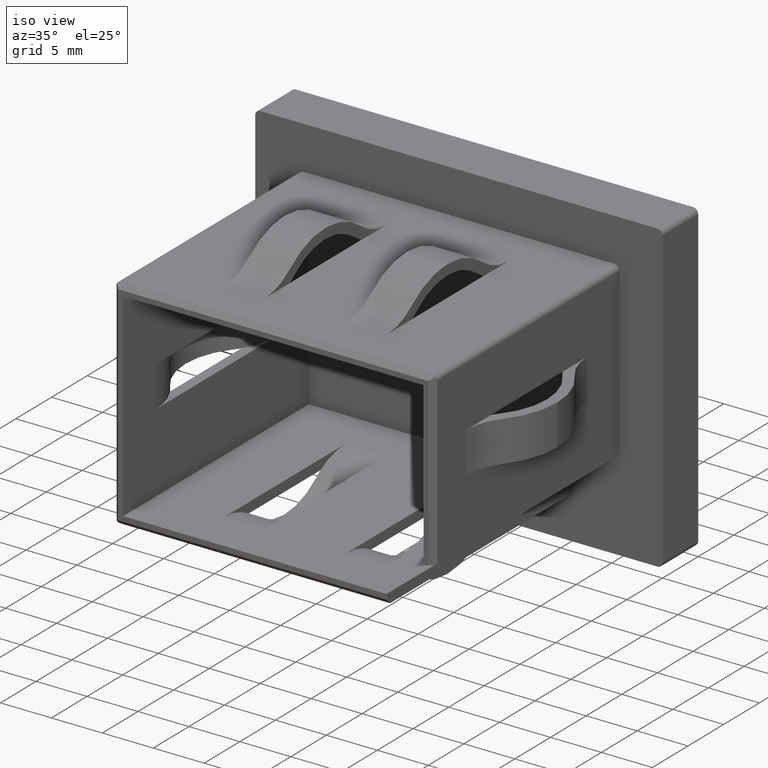
[diagram: clean part render]
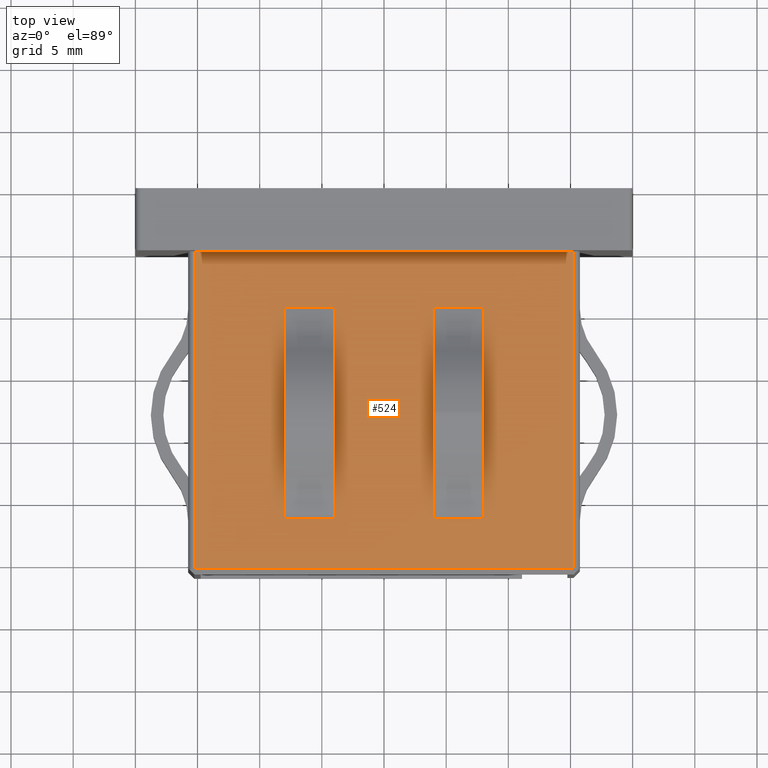
[diagram: tour spotlight — one face highlighted and labeled with its STEP entity id]
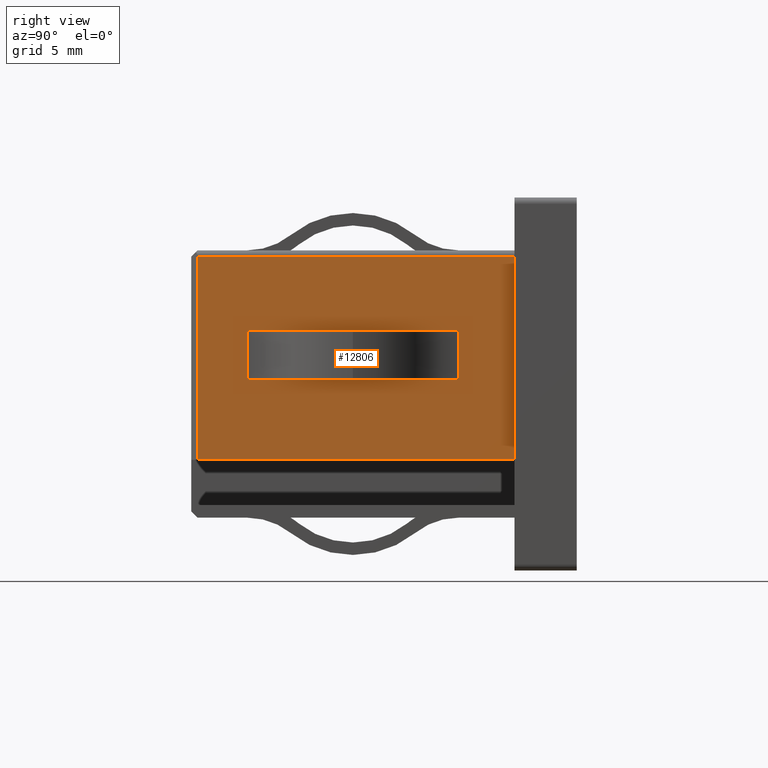
[diagram: tour spotlight — one face highlighted and labeled with its STEP entity id]
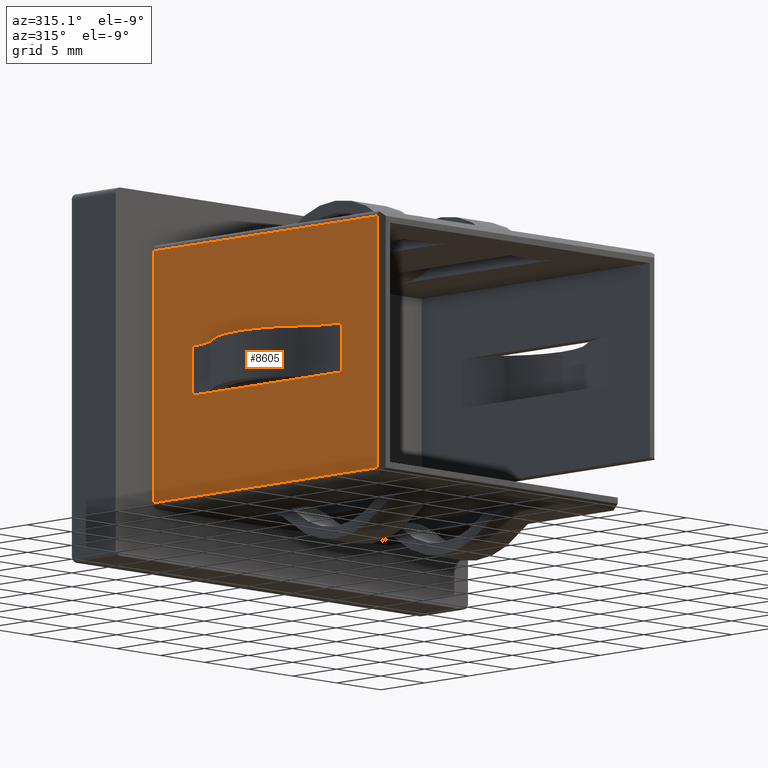
[diagram: tour spotlight — one face highlighted and labeled with its STEP entity id]
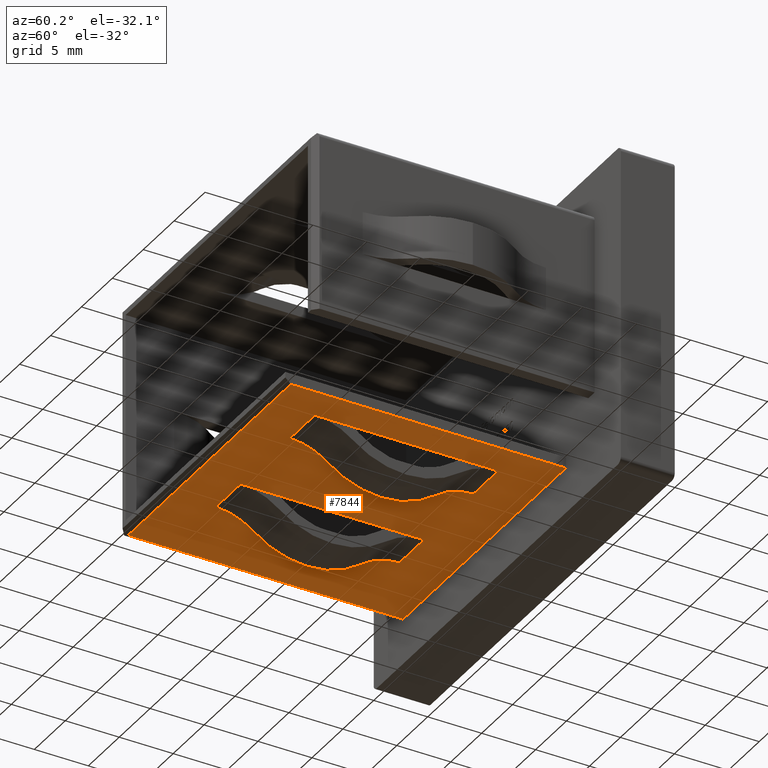
[diagram: tour spotlight — one face highlighted and labeled with its STEP entity id]
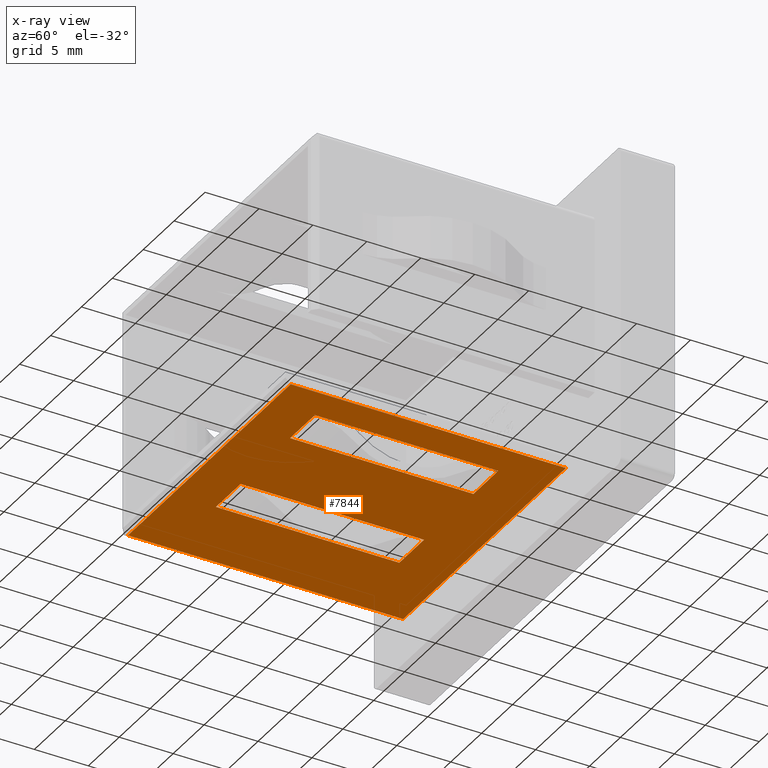
[diagram: x-ray of the same camera — body ghosted, this tour face saturated]
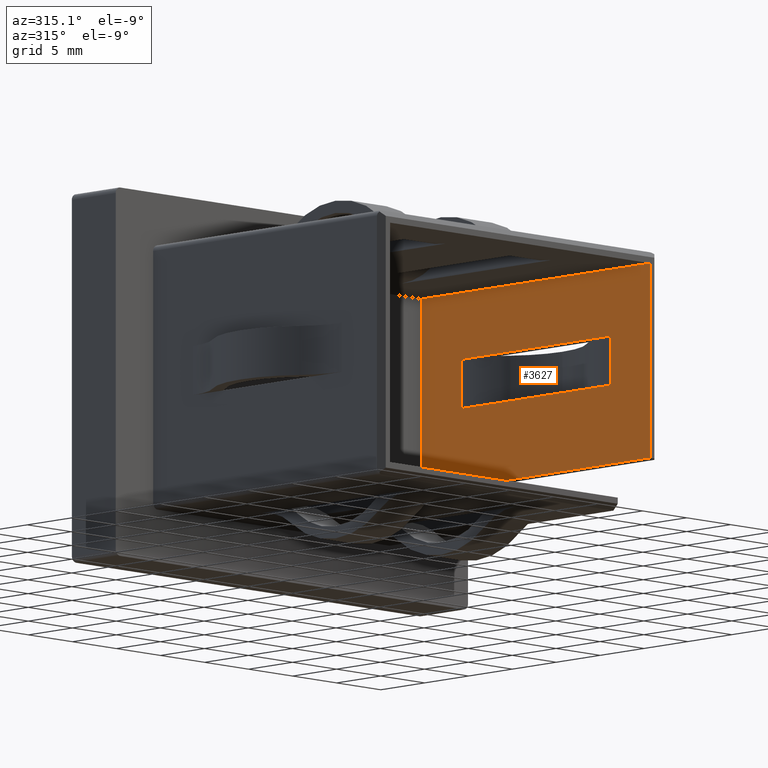
[diagram: tour spotlight — one face highlighted and labeled with its STEP entity id]
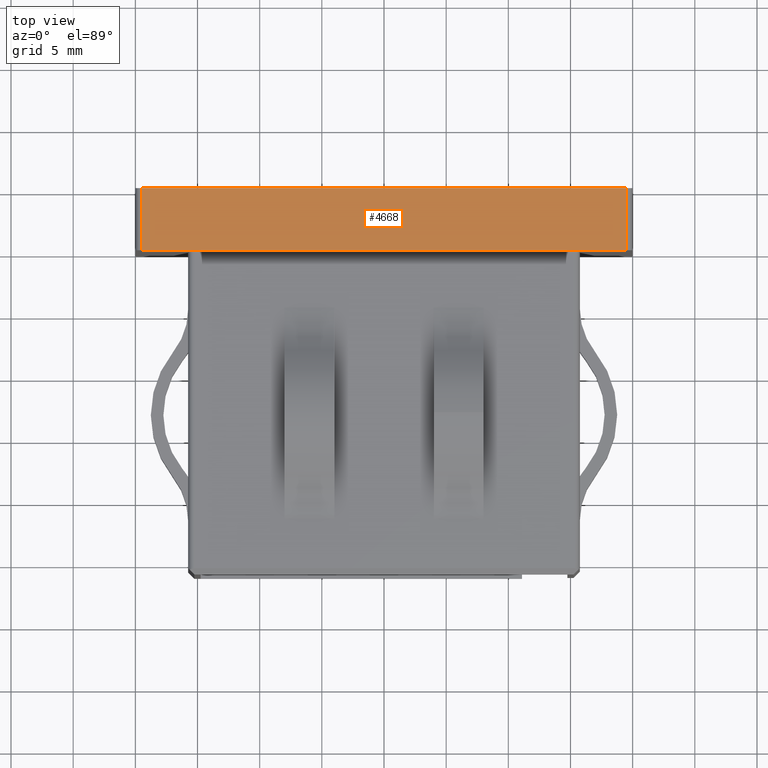
[diagram: tour spotlight — one face highlighted and labeled with its STEP entity id]
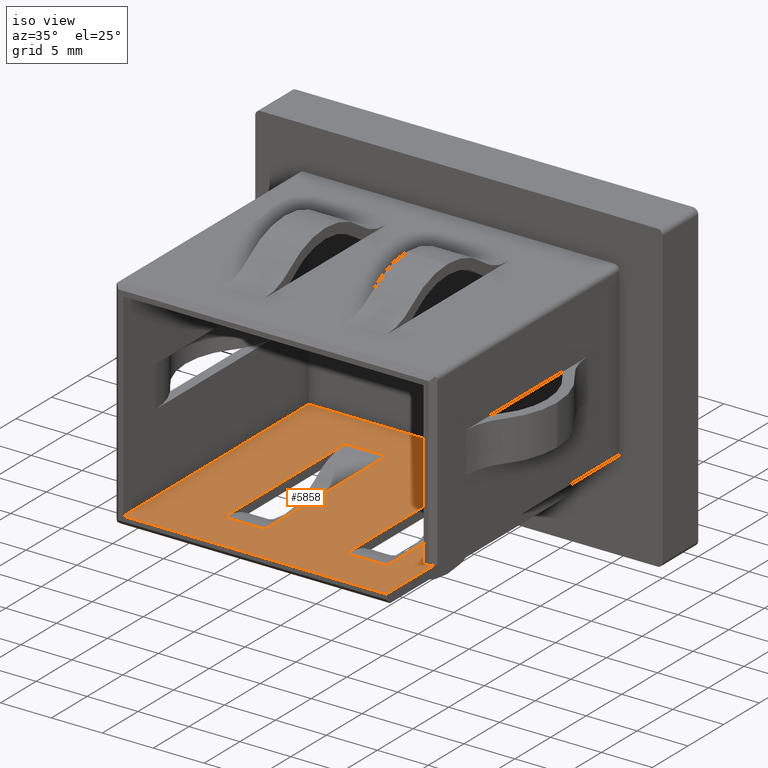
[diagram: tour spotlight — one face highlighted and labeled with its STEP entity id]
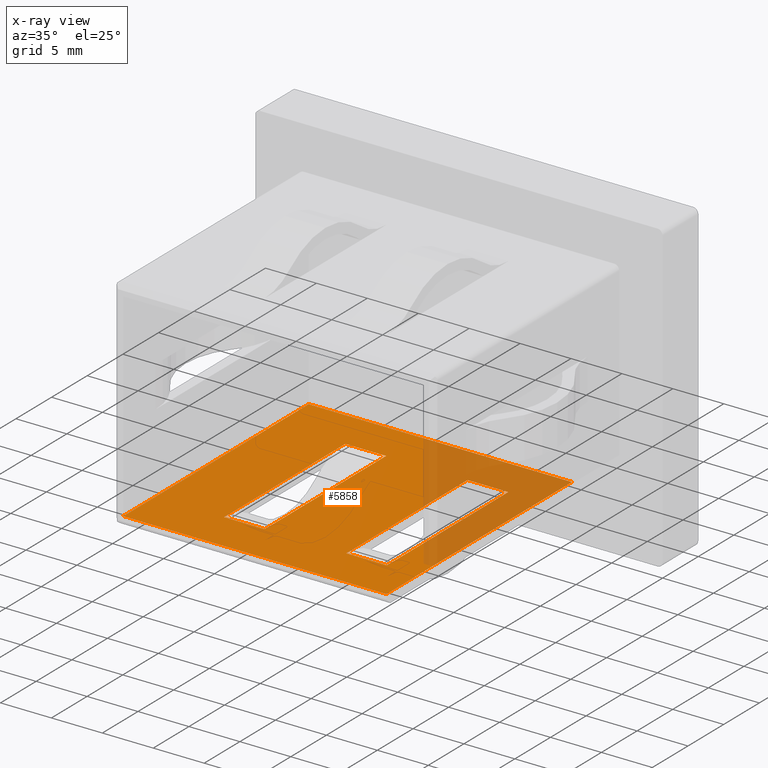
[diagram: x-ray of the same camera — body ghosted, this tour face saturated]
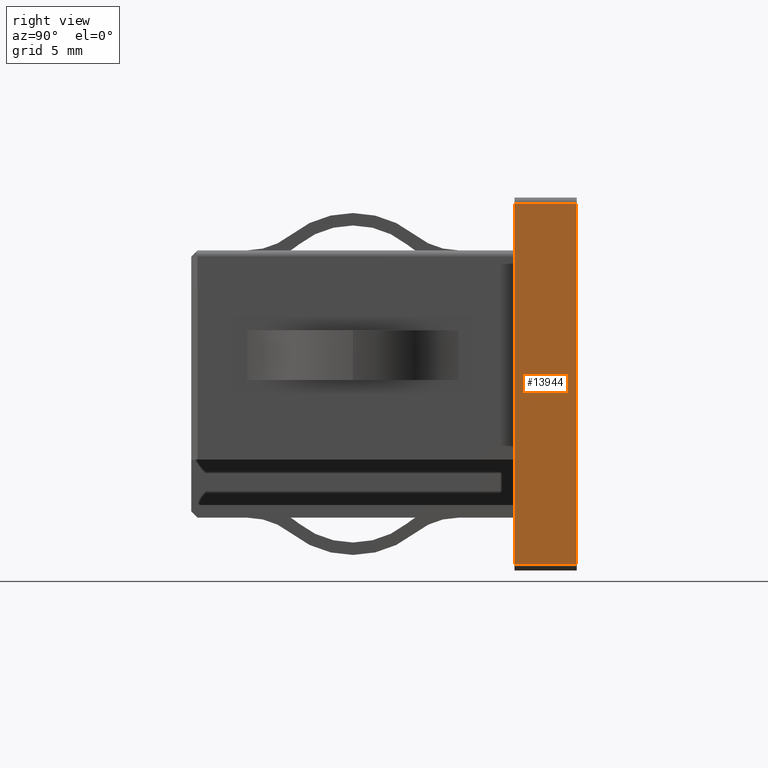
[diagram: tour spotlight — one face highlighted and labeled with its STEP entity id]
A machine part: a face-by-face anatomy tour. The part has 305 B-rep faces; the first image is the clean iso view, then the 8 largest visible faces are spotlighted one at a time (largest first), each with its STEP entity span.

Face 1 — top view, entity #524. In plain terms, the highlighted planar face has unit normal (-0, 0, -1).
Definition (entity closure, byte-faithful):
#83 = LINE ( 'NONE', #7033, #9458 ) ;
#145 = LINE ( 'NONE', #10089, #10436 ) ;
#241 = LINE ( 'NONE', #8172, #12189 ) ;
#422 = ORIENTED_EDGE ( 'NONE', *, *, #4822, .T. ) ;
#459 = CARTESIAN_POINT ( 'NONE',  ( -3.999999999999996447, -21.50000000000000355, 10.74999999999999645 ) ) ;
#524 = ADVANCED_FACE ( 'NONE', ( #5909, #6437, #14805 ), #1873, .F. ) ;
#599 = ORIENTED_EDGE ( 'NONE', *, *, #5177, .T. ) ;
#620 = CARTESIAN_POINT ( 'NONE',  ( -7.999999999999996447, -26.00000000000000000, 10.74999999999999645 ) ) ;
#713 = VERTEX_POINT ( 'NONE', #14557 ) ;
#855 = VECTOR ( 'NONE', #2538, 1000.000000000000000 ) ;
#883 = LINE ( 'NONE', #10187, #14446 ) ;
#955 = ORIENTED_EDGE ( 'NONE', *, *, #13143, .F. ) ;
#991 = CARTESIAN_POINT ( 'NONE',  ( 8.000000000000001776, -26.00000000000000000, 10.74999999999999645 ) ) ;
#1013 = CARTESIAN_POINT ( 'NONE',  ( 4.000000000000001776, -21.50000000000000000, 10.75000000000002132 ) ) ;
#1079 = LINE ( 'NONE', #620, #4148 ) ;
#1142 = CARTESIAN_POINT ( 'NONE',  ( 8.000000000000001776, -18.01403342840541555, 10.74999999999999645 ) ) ;
#1158 = DIRECTION ( 'NONE',  ( 1.000000000000000000, -0.000000000000000000, -1.927470528863118802E-16 ) ) ;
#1272 = VECTOR ( 'NONE', #8763, 1000.000000000000000 ) ;
#1318 = DIRECTION ( 'NONE',  ( -1.232595164407830946E-32, 1.000000000000000000, 0.000000000000000000 ) ) ;
#1327 = VERTEX_POINT ( 'NONE', #6931 ) ;
#1438 = DIRECTION ( 'NONE',  ( -1.232595164407830946E-32, 1.000000000000000000, 0.000000000000000000 ) ) ;
#1458 = ORIENTED_EDGE ( 'NONE', *, *, #2854, .T. ) ;
#1519 = DIRECTION ( 'NONE',  ( -1.232595164407830946E-32, 1.000000000000000000, 0.000000000000000000 ) ) ;
#1539 = ORIENTED_EDGE ( 'NONE', *, *, #2553, .F. ) ;
#1873 = PLANE ( 'NONE',  #13007 ) ;
#2009 = CARTESIAN_POINT ( 'NONE',  ( 15.24999999999999645, -25.49999999999999289, 10.74999999999999645 ) ) ;
#2248 = ORIENTED_EDGE ( 'NONE', *, *, #7606, .T. ) ;
#2494 = CARTESIAN_POINT ( 'NONE',  ( -7.999999999999996447, -21.50000000000000000, 10.75000000000002309 ) ) ;
#2496 = CARTESIAN_POINT ( 'NONE',  ( -3.999999999999997335, -18.01403342840538357, 10.74999999999999645 ) ) ;
#2526 = CARTESIAN_POINT ( 'NONE',  ( -15.24999999999999645, -26.00000000000000000, 10.74999999999999645 ) ) ;
#2538 = DIRECTION ( 'NONE',  ( 1.000000000000000000, -0.000000000000000000, -1.927470528863118802E-16 ) ) ;
#2553 = EDGE_CURVE ( 'NONE', #11197, #6259, #7494, .T. ) ;
#2568 = ORIENTED_EDGE ( 'NONE', *, *, #5937, .F. ) ;
#2656 = VECTOR ( 'NONE', #5863, 1000.000000000000000 ) ;
#2854 = EDGE_CURVE ( 'NONE', #7968, #2903, #11506, .T. ) ;
#2903 = VERTEX_POINT ( 'NONE', #8689 ) ;
#2917 = ORIENTED_EDGE ( 'NONE', *, *, #8215, .T. ) ;
#3048 = DIRECTION ( 'NONE',  ( -0.000000000000000000, 0.000000000000000000, -1.000000000000000000 ) ) ;
#3522 = DIRECTION ( 'NONE',  ( -1.000000000000000000, -0.000000000000000000, 1.927470528863118802E-16 ) ) ;
#3976 = CARTESIAN_POINT ( 'NONE',  ( 8.000000000000001776, -26.00000000000000000, 10.74999999999999645 ) ) ;
#4014 = CARTESIAN_POINT ( 'NONE',  ( 8.000000000000001776, -26.00000000000000000, 10.74999999999999645 ) ) ;
#4148 = VECTOR ( 'NONE', #8625, 1000.000000000000000 ) ;
#4178 = VERTEX_POINT ( 'NONE', #6916 ) ;
#4254 = VECTOR ( 'NONE', #11056, 1000.000000000000000 ) ;
#4389 = CARTESIAN_POINT ( 'NONE',  ( 15.24999999999999645, -26.00000000000000000, 10.74999999999999645 ) ) ;
#4678 = VECTOR ( 'NONE', #1158, 1000.000000000000000 ) ;
#4748 = LINE ( 'NONE', #991, #11463 ) ;
#4822 = EDGE_CURVE ( 'NONE', #4178, #11283, #83, .T. ) ;
#4980 = VERTEX_POINT ( 'NONE', #14546 ) ;
#5000 = EDGE_CURVE ( 'NONE', #4980, #1327, #11813, .T. ) ;
#5037 = CARTESIAN_POINT ( 'NONE',  ( 4.000000000000001776, -4.499999999999997335, 10.74999999999999645 ) ) ;
#5153 = VECTOR ( 'NONE', #7323, 1000.000000000000000 ) ;
#5177 = EDGE_CURVE ( 'NONE', #1327, #7968, #4748, .T. ) ;
#5200 = EDGE_CURVE ( 'NONE', #6391, #13671, #5993, .T. ) ;
#5262 = ORIENTED_EDGE ( 'NONE', *, *, #5200, .F. ) ;
#5307 = EDGE_LOOP ( 'NONE', ( #12016, #13871, #599, #1458, #14007, #955, #2568, #1539 ) ) ;
#5324 = ORIENTED_EDGE ( 'NONE', *, *, #12682, .F. ) ;
#5495 = LINE ( 'NONE', #6186, #5928 ) ;
#5557 = DIRECTION ( 'NONE',  ( 0.000000000000000000, 1.000000000000000000, 0.000000000000000000 ) ) ;
#5678 = CARTESIAN_POINT ( 'NONE',  ( 8.000000000000001776, -4.500000000000000000, 10.74999999999999645 ) ) ;
#5727 = LINE ( 'NONE', #5678, #7907 ) ;
#5863 = DIRECTION ( 'NONE',  ( -0.000000000000000000, -1.000000000000000000, -0.000000000000000000 ) ) ;
#5909 = FACE_BOUND ( 'NONE', #5307, .T. ) ;
#5928 = VECTOR ( 'NONE', #9586, 1000.000000000000000 ) ;
#5937 = EDGE_CURVE ( 'NONE', #6259, #14397, #241, .T. ) ;
#5993 = LINE ( 'NONE', #9704, #10898 ) ;
#5994 = EDGE_CURVE ( 'NONE', #12153, #6172, #5495, .T. ) ;
#6172 = VERTEX_POINT ( 'NONE', #12503 ) ;
#6186 = CARTESIAN_POINT ( 'NONE',  ( 15.74999999999999645, 0.000000000000000000, 10.74999999999999645 ) ) ;
#6219 = EDGE_LOOP ( 'NONE', ( #14766, #2248, #2917, #14055 ) ) ;
#6259 = VERTEX_POINT ( 'NONE', #14977 ) ;
#6285 = VECTOR ( 'NONE', #5557, 1000.000000000000000 ) ;
#6337 = CARTESIAN_POINT ( 'NONE',  ( -3.999999999999996447, -26.00000000000000000, 10.74999999999999645 ) ) ;
#6354 = VERTEX_POINT ( 'NONE', #11816 ) ;
#6391 = VERTEX_POINT ( 'NONE', #2496 ) ;
#6437 = FACE_OUTER_BOUND ( 'NONE', #6219, .T. ) ;
#6529 = CARTESIAN_POINT ( 'NONE',  ( 4.000000000000001776, -26.00000000000000000, 10.74999999999999645 ) ) ;
#6869 = EDGE_CURVE ( 'NONE', #8054, #4178, #1079, .T. ) ;
#6916 = CARTESIAN_POINT ( 'NONE',  ( -7.999999999999998224, -7.985966129132509472, 10.74999999999999645 ) ) ;
#6931 = CARTESIAN_POINT ( 'NONE',  ( 8.000000000000001776, -7.985966129132513913, 10.74999999999999645 ) ) ;
#7026 = EDGE_CURVE ( 'NONE', #13740, #12153, #9366, .T. ) ;
#7033 = CARTESIAN_POINT ( 'NONE',  ( -7.999999999999996447, -26.00000000000000000, 10.74999999999999645 ) ) ;
#7057 = CARTESIAN_POINT ( 'NONE',  ( -7.999999999999996447, -26.00000000000000000, 10.74999999999999645 ) ) ;
#7323 = DIRECTION ( 'NONE',  ( -1.232595164407830946E-32, -1.000000000000000000, 0.000000000000000000 ) ) ;
#7471 = ORIENTED_EDGE ( 'NONE', *, *, #6869, .T. ) ;
#7494 = LINE ( 'NONE', #6529, #4254 ) ;
#7502 = ORIENTED_EDGE ( 'NONE', *, *, #8680, .F. ) ;
#7606 = EDGE_CURVE ( 'NONE', #6172, #6354, #8809, .T. ) ;
#7831 = DIRECTION ( 'NONE',  ( 1.000000000000000000, 0.000000000000000000, 0.000000000000000000 ) ) ;
#7907 = VECTOR ( 'NONE', #3522, 1000.000000000000000 ) ;
#7924 = CARTESIAN_POINT ( 'NONE',  ( -7.999999999999996447, -4.500000000000000000, 10.74999999999999822 ) ) ;
#7968 = VERTEX_POINT ( 'NONE', #1142 ) ;
#7982 = EDGE_CURVE ( 'NONE', #4980, #11197, #5727, .T. ) ;
#8054 = VERTEX_POINT ( 'NONE', #10832 ) ;
#8094 = CARTESIAN_POINT ( 'NONE',  ( -3.999999999999997335, -4.500000000000000000, 10.74999999999999822 ) ) ;
#8134 = VECTOR ( 'NONE', #1318, 1000.000000000000000 ) ;
#8172 = CARTESIAN_POINT ( 'NONE',  ( 4.000000000000001776, -26.00000000000000000, 10.74999999999999645 ) ) ;
#8215 = EDGE_CURVE ( 'NONE', #6354, #13740, #13156, .T. ) ;
#8272 = DIRECTION ( 'NONE',  ( -1.232595164407830946E-32, -1.000000000000000000, 0.000000000000000000 ) ) ;
#8307 = LINE ( 'NONE', #7057, #8134 ) ;
#8456 = LINE ( 'NONE', #7924, #4678 ) ;
#8472 = LINE ( 'NONE', #9035, #14476 ) ;
#8625 = DIRECTION ( 'NONE',  ( -1.232595164407830946E-32, 1.000000000000000000, 0.000000000000000000 ) ) ;
#8680 = EDGE_CURVE ( 'NONE', #10526, #6391, #145, .T. ) ;
#8689 = CARTESIAN_POINT ( 'NONE',  ( 8.000000000000001776, -21.50000000000000000, 10.74999999999999645 ) ) ;
#8763 = DIRECTION ( 'NONE',  ( -1.232595164407830946E-32, 1.000000000000000000, 0.000000000000000000 ) ) ;
#8809 = LINE ( 'NONE', #2526, #2656 ) ;
#8885 = CARTESIAN_POINT ( 'NONE',  ( 15.74999999999999645, -25.49999999999999289, 10.74999999999999645 ) ) ;
#9035 = CARTESIAN_POINT ( 'NONE',  ( 4.000000000000001776, -26.00000000000000000, 10.74999999999999645 ) ) ;
#9053 = EDGE_CURVE ( 'NONE', #713, #10526, #12629, .T. ) ;
#9123 = EDGE_LOOP ( 'NONE', ( #11098, #14813, #7471, #422, #10546, #5324, #5262, #7502 ) ) ;
#9366 = LINE ( 'NONE', #4389, #6285 ) ;
#9458 = VECTOR ( 'NONE', #1438, 1000.000000000000000 ) ;
#9586 = DIRECTION ( 'NONE',  ( -1.000000000000000000, 0.000000000000000000, 0.000000000000000000 ) ) ;
#9704 = CARTESIAN_POINT ( 'NONE',  ( -3.999999999999996447, -26.00000000000000000, 10.74999999999999645 ) ) ;
#9866 = DIRECTION ( 'NONE',  ( -1.232595164407830946E-32, -1.000000000000000000, 0.000000000000000000 ) ) ;
#9957 = CARTESIAN_POINT ( 'NONE',  ( 15.74999999999999645, -26.00000000000000000, 10.74999999999999645 ) ) ;
#10049 = CARTESIAN_POINT ( 'NONE',  ( -3.999999999999997335, -7.985966129132509472, 10.74999999999999645 ) ) ;
#10089 = CARTESIAN_POINT ( 'NONE',  ( -3.999999999999996447, -26.00000000000000000, 10.74999999999999645 ) ) ;
#10106 = CARTESIAN_POINT ( 'NONE',  ( 15.24999999999999645, 0.000000000000000000, 10.74999999999999645 ) ) ;
#10187 = CARTESIAN_POINT ( 'NONE',  ( 8.000000000000001776, -21.50000000000000000, 10.75000000000002132 ) ) ;
#10436 = VECTOR ( 'NONE', #12441, 1000.000000000000000 ) ;
#10526 = VERTEX_POINT ( 'NONE', #459 ) ;
#10546 = ORIENTED_EDGE ( 'NONE', *, *, #13767, .T. ) ;
#10598 = VECTOR ( 'NONE', #7831, 1000.000000000000000 ) ;
#10832 = CARTESIAN_POINT ( 'NONE',  ( -7.999999999999998224, -18.01403342840542265, 10.74999999999999645 ) ) ;
#10898 = VECTOR ( 'NONE', #1519, 1000.000000000000000 ) ;
#11035 = LINE ( 'NONE', #6337, #1272 ) ;
#11056 = DIRECTION ( 'NONE',  ( -1.232595164407830946E-32, -1.000000000000000000, 0.000000000000000000 ) ) ;
#11098 = ORIENTED_EDGE ( 'NONE', *, *, #9053, .F. ) ;
#11197 = VERTEX_POINT ( 'NONE', #5037 ) ;
#11283 = VERTEX_POINT ( 'NONE', #11432 ) ;
#11432 = CARTESIAN_POINT ( 'NONE',  ( -7.999999999999996447, -4.499999999999997335, 10.74999999999999645 ) ) ;
#11463 = VECTOR ( 'NONE', #13839, 1000.000000000000000 ) ;
#11493 = DIRECTION ( 'NONE',  ( -1.232595164407830946E-32, -1.000000000000000000, 0.000000000000000000 ) ) ;
#11506 = LINE ( 'NONE', #4014, #5153 ) ;
#11796 = EDGE_CURVE ( 'NONE', #713, #8054, #8307, .T. ) ;
#11813 = LINE ( 'NONE', #3976, #14164 ) ;
#11816 = CARTESIAN_POINT ( 'NONE',  ( -15.24999999999999645, -25.49999999999999289, 10.74999999999999645 ) ) ;
#12016 = ORIENTED_EDGE ( 'NONE', *, *, #7982, .F. ) ;
#12153 = VERTEX_POINT ( 'NONE', #10106 ) ;
#12189 = VECTOR ( 'NONE', #8272, 1000.000000000000000 ) ;
#12441 = DIRECTION ( 'NONE',  ( -1.232595164407830946E-32, 1.000000000000000000, 0.000000000000000000 ) ) ;
#12503 = CARTESIAN_POINT ( 'NONE',  ( -15.24999999999999645, 0.000000000000000000, 10.74999999999999645 ) ) ;
#12629 = LINE ( 'NONE', #2494, #855 ) ;
#12682 = EDGE_CURVE ( 'NONE', #13671, #14558, #11035, .T. ) ;
#13007 = AXIS2_PLACEMENT_3D ( 'NONE', #9957, #3048, #14645 ) ;
#13070 = CARTESIAN_POINT ( 'NONE',  ( 4.000000000000002665, -18.01403342840541555, 10.74999999999999645 ) ) ;
#13143 = EDGE_CURVE ( 'NONE', #14397, #13845, #8472, .T. ) ;
#13156 = LINE ( 'NONE', #8885, #10598 ) ;
#13671 = VERTEX_POINT ( 'NONE', #10049 ) ;
#13709 = DIRECTION ( 'NONE',  ( -1.000000000000000000, -0.000000000000000000, 1.927470528863118802E-16 ) ) ;
#13740 = VERTEX_POINT ( 'NONE', #2009 ) ;
#13767 = EDGE_CURVE ( 'NONE', #11283, #14558, #8456, .T. ) ;
#13839 = DIRECTION ( 'NONE',  ( -1.232595164407830946E-32, -1.000000000000000000, 0.000000000000000000 ) ) ;
#13845 = VERTEX_POINT ( 'NONE', #1013 ) ;
#13871 = ORIENTED_EDGE ( 'NONE', *, *, #5000, .T. ) ;
#14007 = ORIENTED_EDGE ( 'NONE', *, *, #14298, .T. ) ;
#14055 = ORIENTED_EDGE ( 'NONE', *, *, #7026, .T. ) ;
#14164 = VECTOR ( 'NONE', #9866, 1000.000000000000000 ) ;
#14298 = EDGE_CURVE ( 'NONE', #2903, #13845, #883, .T. ) ;
#14397 = VERTEX_POINT ( 'NONE', #13070 ) ;
#14446 = VECTOR ( 'NONE', #13709, 1000.000000000000000 ) ;
#14476 = VECTOR ( 'NONE', #11493, 1000.000000000000000 ) ;
#14546 = CARTESIAN_POINT ( 'NONE',  ( 8.000000000000001776, -4.500000000000000888, 10.75000000000000000 ) ) ;
#14557 = CARTESIAN_POINT ( 'NONE',  ( -7.999999999999996447, -21.49999955753791880, 10.75000000000000533 ) ) ;
#14558 = VERTEX_POINT ( 'NONE', #8094 ) ;
#14645 = DIRECTION ( 'NONE',  ( -1.000000000000000000, 0.000000000000000000, 0.000000000000000000 ) ) ;
#14766 = ORIENTED_EDGE ( 'NONE', *, *, #5994, .T. ) ;
#14805 = FACE_BOUND ( 'NONE', #9123, .T. ) ;
#14813 = ORIENTED_EDGE ( 'NONE', *, *, #11796, .T. ) ;
#14977 = CARTESIAN_POINT ( 'NONE',  ( 4.000000000000001776, -7.985966129132513913, 10.74999999999999645 ) ) ;

Face 2 — right view, entity #12806. In plain terms, the highlighted planar face has unit normal (-1, 0, -0).
Definition (entity closure, byte-faithful):
#106 = VERTEX_POINT ( 'NONE', #13811 ) ;
#141 = DIRECTION ( 'NONE',  ( -0.000000000000000000, 1.000000000000000000, -0.000000000000000000 ) ) ;
#350 = VECTOR ( 'NONE', #6349, 1000.000000000000000 ) ;
#484 = LINE ( 'NONE', #3175, #5715 ) ;
#610 = EDGE_CURVE ( 'NONE', #8388, #12194, #9155, .T. ) ;
#765 = DIRECTION ( 'NONE',  ( 0.000000000000000000, -1.000000000000000000, 0.000000000000000000 ) ) ;
#985 = ORIENTED_EDGE ( 'NONE', *, *, #11886, .T. ) ;
#1125 = CARTESIAN_POINT ( 'NONE',  ( 15.74999999999999645, -18.01403370679348015, 4.324999999999990408 ) ) ;
#1306 = ORIENTED_EDGE ( 'NONE', *, *, #12678, .T. ) ;
#1358 = CARTESIAN_POINT ( 'NONE',  ( 15.74999999999759659, -4.500000000000004441, 0.3249999999999902411 ) ) ;
#1589 = LINE ( 'NONE', #6301, #350 ) ;
#1642 = CARTESIAN_POINT ( 'NONE',  ( 15.75000000000000000, -7.985966293206522515, 0.3249999999999897971 ) ) ;
#1669 = PLANE ( 'NONE',  #6835 ) ;
#1780 = FACE_OUTER_BOUND ( 'NONE', #12769, .T. ) ;
#2043 = VECTOR ( 'NONE', #12578, 1000.000000000000000 ) ;
#2084 = VERTEX_POINT ( 'NONE', #9721 ) ;
#2228 = VERTEX_POINT ( 'NONE', #14556 ) ;
#2415 = ORIENTED_EDGE ( 'NONE', *, *, #5124, .T. ) ;
#3175 = CARTESIAN_POINT ( 'NONE',  ( 15.74999999999999645, 0.000000000000000000, 10.74999999999999645 ) ) ;
#3514 = CARTESIAN_POINT ( 'NONE',  ( 15.75000000000000000, -26.00000000000000000, -6.100000000000003197 ) ) ;
#3808 = CARTESIAN_POINT ( 'NONE',  ( 15.74999999999999645, -26.00000000000000000, 4.324999999999990408 ) ) ;
#3941 = VERTEX_POINT ( 'NONE', #9801 ) ;
#4185 = CARTESIAN_POINT ( 'NONE',  ( 15.74999999999999645, -26.00000000000000000, 10.24999999999999467 ) ) ;
#4234 = ORIENTED_EDGE ( 'NONE', *, *, #8952, .T. ) ;
#4285 = DIRECTION ( 'NONE',  ( 0.000000000000000000, -1.000000000000000000, 0.000000000000000000 ) ) ;
#4799 = CARTESIAN_POINT ( 'NONE',  ( 15.75000000000000000, 0.000000000000000000, -6.100000000000003197 ) ) ;
#4861 = CARTESIAN_POINT ( 'NONE',  ( 15.75000000000000000, -26.00000000000000000, 0.3249999999999902411 ) ) ;
#4924 = ORIENTED_EDGE ( 'NONE', *, *, #10846, .F. ) ;
#5061 = CARTESIAN_POINT ( 'NONE',  ( 15.74999999999999645, -26.00000000000000000, 10.74999999999999645 ) ) ;
#5124 = EDGE_CURVE ( 'NONE', #6050, #8388, #8707, .T. ) ;
#5129 = VECTOR ( 'NONE', #12760, 1000.000000000000000 ) ;
#5166 = ORIENTED_EDGE ( 'NONE', *, *, #8697, .T. ) ;
#5249 = LINE ( 'NONE', #3514, #14135 ) ;
#5314 = CARTESIAN_POINT ( 'NONE',  ( 15.75000000000000000, -26.00000000000000000, 0.3249999999999902411 ) ) ;
#5715 = VECTOR ( 'NONE', #11273, 1000.000000000000000 ) ;
#6050 = VERTEX_POINT ( 'NONE', #7447 ) ;
#6252 = LINE ( 'NONE', #13862, #13341 ) ;
#6301 = CARTESIAN_POINT ( 'NONE',  ( 15.74999999999759304, -21.49999992292215367, 0.3249999999999902411 ) ) ;
#6349 = DIRECTION ( 'NONE',  ( -0.000000000000000000, -0.000000000000000000, 1.000000000000000000 ) ) ;
#6387 = DIRECTION ( 'NONE',  ( -0.000000000000000000, -1.000000000000000000, -0.000000000000000000 ) ) ;
#6584 = DIRECTION ( 'NONE',  ( 2.059018962583748006E-16, 0.000000000000000000, -1.000000000000000000 ) ) ;
#6697 = CARTESIAN_POINT ( 'NONE',  ( 15.74999999999999645, -26.00000000000000000, 4.324999999999990408 ) ) ;
#6831 = EDGE_CURVE ( 'NONE', #7116, #7711, #1589, .T. ) ;
#6835 = AXIS2_PLACEMENT_3D ( 'NONE', #5061, #14291, #9759 ) ;
#6890 = CARTESIAN_POINT ( 'NONE',  ( 15.75000000000000000, -21.49999992292215367, 0.3249999999999902411 ) ) ;
#7096 = ORIENTED_EDGE ( 'NONE', *, *, #10353, .F. ) ;
#7116 = VERTEX_POINT ( 'NONE', #6890 ) ;
#7351 = ORIENTED_EDGE ( 'NONE', *, *, #13599, .F. ) ;
#7384 = LINE ( 'NONE', #4185, #11761 ) ;
#7447 = CARTESIAN_POINT ( 'NONE',  ( 15.74999999999819522, -4.500000077077856986, 0.3249999999999902411 ) ) ;
#7711 = VERTEX_POINT ( 'NONE', #10717 ) ;
#7834 = ORIENTED_EDGE ( 'NONE', *, *, #610, .T. ) ;
#8150 = CARTESIAN_POINT ( 'NONE',  ( 15.75000000000000000, -25.49999999999999289, -6.100000000000003197 ) ) ;
#8192 = LINE ( 'NONE', #11447, #5129 ) ;
#8388 = VERTEX_POINT ( 'NONE', #1642 ) ;
#8661 = EDGE_CURVE ( 'NONE', #106, #14266, #6252, .T. ) ;
#8697 = EDGE_CURVE ( 'NONE', #12194, #7116, #8966, .T. ) ;
#8707 = LINE ( 'NONE', #4861, #2043 ) ;
#8952 = EDGE_CURVE ( 'NONE', #9591, #3941, #484, .T. ) ;
#8966 = LINE ( 'NONE', #14658, #14793 ) ;
#9155 = LINE ( 'NONE', #5314, #9349 ) ;
#9349 = VECTOR ( 'NONE', #12328, 1000.000000000000000 ) ;
#9463 = DIRECTION ( 'NONE',  ( 0.000000000000000000, -1.000000000000000000, 0.000000000000000000 ) ) ;
#9591 = VERTEX_POINT ( 'NONE', #4799 ) ;
#9636 = VERTEX_POINT ( 'NONE', #1125 ) ;
#9721 = CARTESIAN_POINT ( 'NONE',  ( 15.74999999999999645, -4.500000000000000888, 4.324999999999990408 ) ) ;
#9759 = DIRECTION ( 'NONE',  ( -2.059018962583748006E-16, 0.000000000000000000, 1.000000000000000000 ) ) ;
#9801 = CARTESIAN_POINT ( 'NONE',  ( 15.74999999999999645, 0.000000000000000000, 10.24999999999999467 ) ) ;
#10189 = EDGE_LOOP ( 'NONE', ( #7096, #2415, #7834, #5166, #10577, #7351, #11279, #4924 ) ) ;
#10353 = EDGE_CURVE ( 'NONE', #6050, #2084, #11323, .T. ) ;
#10577 = ORIENTED_EDGE ( 'NONE', *, *, #6831, .T. ) ;
#10717 = CARTESIAN_POINT ( 'NONE',  ( 15.74999999999759304, -21.49999992292215367, 4.324999999999990408 ) ) ;
#10846 = EDGE_CURVE ( 'NONE', #2084, #2228, #8192, .T. ) ;
#11273 = DIRECTION ( 'NONE',  ( -2.059018962583747759E-16, -0.000000000000000000, 1.000000000000000000 ) ) ;
#11279 = ORIENTED_EDGE ( 'NONE', *, *, #14318, .F. ) ;
#11323 = LINE ( 'NONE', #1358, #11494 ) ;
#11379 = LINE ( 'NONE', #3808, #14812 ) ;
#11447 = CARTESIAN_POINT ( 'NONE',  ( 15.74999999999999645, -26.00000000000000000, 4.324999999999990408 ) ) ;
#11494 = VECTOR ( 'NONE', #12893, 1000.000000000000000 ) ;
#11588 = FACE_BOUND ( 'NONE', #10189, .T. ) ;
#11761 = VECTOR ( 'NONE', #6387, 1000.000000000000000 ) ;
#11886 = EDGE_CURVE ( 'NONE', #14266, #9591, #5249, .T. ) ;
#11936 = LINE ( 'NONE', #6697, #13930 ) ;
#12194 = VERTEX_POINT ( 'NONE', #13577 ) ;
#12328 = DIRECTION ( 'NONE',  ( 0.000000000000000000, -1.000000000000000000, 0.000000000000000000 ) ) ;
#12359 = ORIENTED_EDGE ( 'NONE', *, *, #8661, .T. ) ;
#12578 = DIRECTION ( 'NONE',  ( 0.000000000000000000, -1.000000000000000000, 0.000000000000000000 ) ) ;
#12678 = EDGE_CURVE ( 'NONE', #3941, #106, #7384, .T. ) ;
#12760 = DIRECTION ( 'NONE',  ( 0.000000000000000000, -1.000000000000000000, 0.000000000000000000 ) ) ;
#12769 = EDGE_LOOP ( 'NONE', ( #4234, #1306, #12359, #985 ) ) ;
#12806 = ADVANCED_FACE ( 'NONE', ( #1780, #11588 ), #1669, .F. ) ;
#12893 = DIRECTION ( 'NONE',  ( -0.000000000000000000, -0.000000000000000000, 1.000000000000000000 ) ) ;
#13341 = VECTOR ( 'NONE', #6584, 1000.000000000000000 ) ;
#13577 = CARTESIAN_POINT ( 'NONE',  ( 15.75000000000000000, -18.01403370679347660, 0.3249999999999897971 ) ) ;
#13599 = EDGE_CURVE ( 'NONE', #9636, #7711, #11936, .T. ) ;
#13811 = CARTESIAN_POINT ( 'NONE',  ( 15.74999999999999645, -25.49999999999999289, 10.24999999999999289 ) ) ;
#13862 = CARTESIAN_POINT ( 'NONE',  ( 15.75000000000000000, -25.49999999999999289, -6.100000000000003197 ) ) ;
#13930 = VECTOR ( 'NONE', #765, 1000.000000000000000 ) ;
#14135 = VECTOR ( 'NONE', #141, 1000.000000000000000 ) ;
#14266 = VERTEX_POINT ( 'NONE', #8150 ) ;
#14291 = DIRECTION ( 'NONE',  ( -1.000000000000000000, 0.000000000000000000, -2.059018962583748006E-16 ) ) ;
#14318 = EDGE_CURVE ( 'NONE', #2228, #9636, #11379, .T. ) ;
#14556 = CARTESIAN_POINT ( 'NONE',  ( 15.74999999999999645, -7.985966293206517186, 4.324999999999990408 ) ) ;
#14658 = CARTESIAN_POINT ( 'NONE',  ( 15.75000000000000000, -26.00000000000000000, 0.3249999999999902411 ) ) ;
#14793 = VECTOR ( 'NONE', #4285, 1000.000000000000000 ) ;
#14812 = VECTOR ( 'NONE', #9463, 1000.000000000000000 ) ;

Face 3 — auxiliary view, entity #8605. In plain terms, the highlighted planar face has unit normal (1, 0, 0).
Definition (entity closure, byte-faithful):
#383 = DIRECTION ( 'NONE',  ( 0.000000000000000000, 1.000000000000000000, 0.000000000000000000 ) ) ;
#492 = ORIENTED_EDGE ( 'NONE', *, *, #5580, .T. ) ;
#874 = EDGE_CURVE ( 'NONE', #10157, #8959, #2464, .T. ) ;
#1027 = CARTESIAN_POINT ( 'NONE',  ( -15.74999999999999645, -4.500000000000000888, -2.000000000000000000 ) ) ;
#1161 = DIRECTION ( 'NONE',  ( 0.000000000000000000, 1.000000000000000000, 0.000000000000000000 ) ) ;
#1173 = CARTESIAN_POINT ( 'NONE',  ( -15.74999999999759837, -21.49999992292215012, -1.999999999999999112 ) ) ;
#1177 = EDGE_CURVE ( 'NONE', #10830, #4064, #5169, .T. ) ;
#1243 = CARTESIAN_POINT ( 'NONE',  ( -15.74999999999999645, -25.49999999999999289, -10.24999999999999467 ) ) ;
#1246 = LINE ( 'NONE', #12508, #13191 ) ;
#1352 = ORIENTED_EDGE ( 'NONE', *, *, #8902, .T. ) ;
#1773 = LINE ( 'NONE', #2178, #5023 ) ;
#1964 = CARTESIAN_POINT ( 'NONE',  ( -15.74999999999999645, -26.00000000000000000, 2.000000000000001776 ) ) ;
#2007 = DIRECTION ( 'NONE',  ( 0.000000000000000000, 1.000000000000000000, 0.000000000000000000 ) ) ;
#2042 = ORIENTED_EDGE ( 'NONE', *, *, #7019, .T. ) ;
#2178 = CARTESIAN_POINT ( 'NONE',  ( -15.74999999999999645, -25.49999999999999289, 10.74999999999999645 ) ) ;
#2250 = VERTEX_POINT ( 'NONE', #10595 ) ;
#2406 = VERTEX_POINT ( 'NONE', #9280 ) ;
#2464 = LINE ( 'NONE', #9058, #4823 ) ;
#2736 = ORIENTED_EDGE ( 'NONE', *, *, #14701, .T. ) ;
#2977 = VERTEX_POINT ( 'NONE', #3148 ) ;
#3033 = LINE ( 'NONE', #8254, #6452 ) ;
#3148 = CARTESIAN_POINT ( 'NONE',  ( -15.74999999999999645, -18.01403370679348726, -1.999999999999999112 ) ) ;
#3897 = VERTEX_POINT ( 'NONE', #7585 ) ;
#3940 = LINE ( 'NONE', #12318, #6446 ) ;
#4064 = VERTEX_POINT ( 'NONE', #13594 ) ;
#4088 = LINE ( 'NONE', #5899, #5335 ) ;
#4096 = EDGE_LOOP ( 'NONE', ( #6923, #13160, #4621, #2736, #9210, #10585, #10050, #5273 ) ) ;
#4152 = CARTESIAN_POINT ( 'NONE',  ( -15.74999999999999645, -26.00000000000000000, -1.999999999999998224 ) ) ;
#4342 = CARTESIAN_POINT ( 'NONE',  ( -15.74999999999999645, 0.000000000000000000, 10.74999999999999645 ) ) ;
#4621 = ORIENTED_EDGE ( 'NONE', *, *, #6922, .T. ) ;
#4820 = VERTEX_POINT ( 'NONE', #14144 ) ;
#4823 = VECTOR ( 'NONE', #6732, 1000.000000000000000 ) ;
#4858 = LINE ( 'NONE', #11138, #13946 ) ;
#5023 = VECTOR ( 'NONE', #11496, 1000.000000000000000 ) ;
#5169 = LINE ( 'NONE', #10325, #11169 ) ;
#5273 = ORIENTED_EDGE ( 'NONE', *, *, #13068, .F. ) ;
#5292 = EDGE_CURVE ( 'NONE', #10830, #2977, #14271, .T. ) ;
#5335 = VECTOR ( 'NONE', #6964, 1000.000000000000000 ) ;
#5498 = CARTESIAN_POINT ( 'NONE',  ( -15.74999999999999645, -26.00000000000000000, 10.74999999999999645 ) ) ;
#5552 = CARTESIAN_POINT ( 'NONE',  ( -15.74999999999519495, -4.500000000000000888, 2.000000000000000888 ) ) ;
#5580 = EDGE_CURVE ( 'NONE', #7551, #2406, #1773, .T. ) ;
#5899 = CARTESIAN_POINT ( 'NONE',  ( -15.74999999999999645, -26.00000000000000000, -10.24999999999999467 ) ) ;
#6446 = VECTOR ( 'NONE', #14529, 1000.000000000000000 ) ;
#6452 = VECTOR ( 'NONE', #1161, 1000.000000000000000 ) ;
#6621 = FACE_BOUND ( 'NONE', #4096, .T. ) ;
#6654 = DIRECTION ( 'NONE',  ( 1.000000000000000000, 0.000000000000000000, 0.000000000000000000 ) ) ;
#6732 = DIRECTION ( 'NONE',  ( 6.424901762877059797E-17, -0.000000000000000000, 1.000000000000000000 ) ) ;
#6818 = VERTEX_POINT ( 'NONE', #13253 ) ;
#6922 = EDGE_CURVE ( 'NONE', #2977, #3897, #14273, .T. ) ;
#6923 = ORIENTED_EDGE ( 'NONE', *, *, #1177, .F. ) ;
#6964 = DIRECTION ( 'NONE',  ( 0.000000000000000000, -1.000000000000000000, -0.000000000000000000 ) ) ;
#7019 = EDGE_CURVE ( 'NONE', #2406, #2250, #1246, .T. ) ;
#7093 = EDGE_CURVE ( 'NONE', #4820, #8959, #3033, .T. ) ;
#7204 = ORIENTED_EDGE ( 'NONE', *, *, #9560, .T. ) ;
#7207 = CARTESIAN_POINT ( 'NONE',  ( -15.74999999999999645, 0.000000000000000000, -10.24999999999999467 ) ) ;
#7551 = VERTEX_POINT ( 'NONE', #1243 ) ;
#7585 = CARTESIAN_POINT ( 'NONE',  ( -15.74999999999999645, -7.985966293206511857, -1.999999999999999112 ) ) ;
#7806 = DIRECTION ( 'NONE',  ( 0.000000000000000000, 0.000000000000000000, -1.000000000000000000 ) ) ;
#8225 = VECTOR ( 'NONE', #12501, 1000.000000000000000 ) ;
#8254 = CARTESIAN_POINT ( 'NONE',  ( -15.74999999999999645, -26.00000000000000000, 2.000000000000001776 ) ) ;
#8595 = EDGE_LOOP ( 'NONE', ( #1352, #7204, #492, #2042 ) ) ;
#8605 = ADVANCED_FACE ( 'NONE', ( #13534, #6621 ), #12456, .F. ) ;
#8728 = DIRECTION ( 'NONE',  ( 0.000000000000000000, 1.000000000000000000, 0.000000000000000000 ) ) ;
#8902 = EDGE_CURVE ( 'NONE', #2250, #12021, #13886, .T. ) ;
#8959 = VERTEX_POINT ( 'NONE', #5552 ) ;
#9058 = CARTESIAN_POINT ( 'NONE',  ( -15.74999999999519495, -4.500000000000000888, -1.999999999999999112 ) ) ;
#9210 = ORIENTED_EDGE ( 'NONE', *, *, #874, .T. ) ;
#9280 = CARTESIAN_POINT ( 'NONE',  ( -15.74999999999999645, -25.49999999999999289, 10.24999999999999467 ) ) ;
#9560 = EDGE_CURVE ( 'NONE', #12021, #7551, #4088, .T. ) ;
#9943 = DIRECTION ( 'NONE',  ( 0.000000000000000000, 1.000000000000000000, 0.000000000000000000 ) ) ;
#10050 = ORIENTED_EDGE ( 'NONE', *, *, #11312, .F. ) ;
#10095 = VECTOR ( 'NONE', #383, 1000.000000000000000 ) ;
#10157 = VERTEX_POINT ( 'NONE', #1027 ) ;
#10325 = CARTESIAN_POINT ( 'NONE',  ( -15.74999999999519495, -21.50000000000000000, -1.999999999999999112 ) ) ;
#10585 = ORIENTED_EDGE ( 'NONE', *, *, #7093, .F. ) ;
#10595 = CARTESIAN_POINT ( 'NONE',  ( -15.74999999999999645, 0.000000000000000000, 10.24999999999999467 ) ) ;
#10659 = VECTOR ( 'NONE', #2007, 1000.000000000000000 ) ;
#10830 = VERTEX_POINT ( 'NONE', #1173 ) ;
#11138 = CARTESIAN_POINT ( 'NONE',  ( -15.74999999999999645, -26.00000000000000000, 2.000000000000001776 ) ) ;
#11169 = VECTOR ( 'NONE', #11505, 1000.000000000000000 ) ;
#11312 = EDGE_CURVE ( 'NONE', #6818, #4820, #11756, .T. ) ;
#11496 = DIRECTION ( 'NONE',  ( 0.000000000000000000, 0.000000000000000000, 1.000000000000000000 ) ) ;
#11505 = DIRECTION ( 'NONE',  ( 6.424901762877059797E-17, -0.000000000000000000, 1.000000000000000000 ) ) ;
#11703 = AXIS2_PLACEMENT_3D ( 'NONE', #5498, #6654, #7806 ) ;
#11756 = LINE ( 'NONE', #1964, #10659 ) ;
#11930 = VECTOR ( 'NONE', #9943, 1000.000000000000000 ) ;
#12021 = VERTEX_POINT ( 'NONE', #7207 ) ;
#12318 = CARTESIAN_POINT ( 'NONE',  ( -15.74999999999999645, -26.00000000000000000, -1.999999999999998224 ) ) ;
#12456 = PLANE ( 'NONE',  #11703 ) ;
#12501 = DIRECTION ( 'NONE',  ( 0.000000000000000000, -0.000000000000000000, -1.000000000000000000 ) ) ;
#12508 = CARTESIAN_POINT ( 'NONE',  ( -15.74999999999999645, -26.00000000000000000, 10.24999999999999467 ) ) ;
#13068 = EDGE_CURVE ( 'NONE', #4064, #6818, #4858, .T. ) ;
#13160 = ORIENTED_EDGE ( 'NONE', *, *, #5292, .T. ) ;
#13191 = VECTOR ( 'NONE', #13769, 1000.000000000000000 ) ;
#13253 = CARTESIAN_POINT ( 'NONE',  ( -15.74999999999999645, -18.01403370679348726, 2.000000000000000888 ) ) ;
#13534 = FACE_OUTER_BOUND ( 'NONE', #8595, .T. ) ;
#13594 = CARTESIAN_POINT ( 'NONE',  ( -15.74999999999999645, -21.50000000000000355, 2.000000000000001776 ) ) ;
#13769 = DIRECTION ( 'NONE',  ( -0.000000000000000000, 1.000000000000000000, 0.000000000000000000 ) ) ;
#13886 = LINE ( 'NONE', #4342, #8225 ) ;
#13946 = VECTOR ( 'NONE', #8728, 1000.000000000000000 ) ;
#14144 = CARTESIAN_POINT ( 'NONE',  ( -15.74999999999999645, -7.985966293206511857, 2.000000000000000888 ) ) ;
#14271 = LINE ( 'NONE', #14325, #10095 ) ;
#14273 = LINE ( 'NONE', #4152, #11930 ) ;
#14325 = CARTESIAN_POINT ( 'NONE',  ( -15.74999999999999645, -26.00000000000000000, -1.999999999999998224 ) ) ;
#14529 = DIRECTION ( 'NONE',  ( 0.000000000000000000, 1.000000000000000000, 0.000000000000000000 ) ) ;
#14701 = EDGE_CURVE ( 'NONE', #3897, #10157, #3940, .T. ) ;

Face 4 — auxiliary view, entity #7844. An x-ray twin of the same camera follows (body ghosted, this face saturated) — the face is partly hidden behind the body. In plain terms, the highlighted planar face has unit normal (0, 0, 1).
Definition (entity closure, byte-faithful):
#4 = VERTEX_POINT ( 'NONE', #11162 ) ;
#74 = ORIENTED_EDGE ( 'NONE', *, *, #3956, .T. ) ;
#155 = VECTOR ( 'NONE', #3273, 1000.000000000000000 ) ;
#175 = CARTESIAN_POINT ( 'NONE',  ( 7.999999999999996447, -4.499999999999993783, -10.75000000000000000 ) ) ;
#264 = ORIENTED_EDGE ( 'NONE', *, *, #786, .T. ) ;
#325 = DIRECTION ( 'NONE',  ( -0.000000000000000000, 1.000000000000000000, 0.000000000000000000 ) ) ;
#510 = VERTEX_POINT ( 'NONE', #14591 ) ;
#562 = CARTESIAN_POINT ( 'NONE',  ( -15.74999999999999645, -25.49999999999999289, -10.74999999999999645 ) ) ;
#633 = ORIENTED_EDGE ( 'NONE', *, *, #4420, .F. ) ;
#646 = ORIENTED_EDGE ( 'NONE', *, *, #1900, .T. ) ;
#687 = LINE ( 'NONE', #11265, #5559 ) ;
#704 = EDGE_CURVE ( 'NONE', #12256, #9086, #687, .T. ) ;
#767 = CARTESIAN_POINT ( 'NONE',  ( -4.000000000000001776, -26.00000000000000000, -10.74999999999999822 ) ) ;
#786 = EDGE_CURVE ( 'NONE', #3495, #12256, #12087, .T. ) ;
#876 = EDGE_CURVE ( 'NONE', #9582, #3913, #1746, .T. ) ;
#880 = FACE_BOUND ( 'NONE', #13600, .T. ) ;
#950 = EDGE_CURVE ( 'NONE', #510, #14270, #6631, .T. ) ;
#1033 = DIRECTION ( 'NONE',  ( -0.000000000000000000, 1.000000000000000000, 0.000000000000000000 ) ) ;
#1394 = CARTESIAN_POINT ( 'NONE',  ( 4.000000000000000000, -21.50000000000000000, -10.74999999999999822 ) ) ;
#1409 = VECTOR ( 'NONE', #5432, 1000.000000000000000 ) ;
#1472 = CARTESIAN_POINT ( 'NONE',  ( 3.999999999999998224, -7.985966129132497038, -10.74999999999999822 ) ) ;
#1560 = VECTOR ( 'NONE', #9987, 1000.000000000000000 ) ;
#1595 = VECTOR ( 'NONE', #11942, 1000.000000000000000 ) ;
#1676 = VECTOR ( 'NONE', #7535, 1000.000000000000000 ) ;
#1746 = LINE ( 'NONE', #2153, #3932 ) ;
#1794 = EDGE_CURVE ( 'NONE', #8198, #3495, #2104, .T. ) ;
#1866 = ORIENTED_EDGE ( 'NONE', *, *, #12708, .T. ) ;
#1900 = EDGE_CURVE ( 'NONE', #3882, #9582, #6603, .T. ) ;
#1909 = ORIENTED_EDGE ( 'NONE', *, *, #704, .T. ) ;
#1940 = ORIENTED_EDGE ( 'NONE', *, *, #11742, .F. ) ;
#1950 = LINE ( 'NONE', #13601, #1409 ) ;
#1983 = LINE ( 'NONE', #11291, #4690 ) ;
#2054 = CARTESIAN_POINT ( 'NONE',  ( -8.000000000000001776, -4.499999999999996447, -10.75000000000001776 ) ) ;
#2104 = LINE ( 'NONE', #12321, #10966 ) ;
#2110 = LINE ( 'NONE', #4299, #1560 ) ;
#2153 = CARTESIAN_POINT ( 'NONE',  ( -4.000000000000001776, -26.00000000000000000, -10.74999999999999822 ) ) ;
#2242 = LINE ( 'NONE', #12127, #1676 ) ;
#2309 = EDGE_CURVE ( 'NONE', #4231, #4, #12791, .T. ) ;
#2349 = VECTOR ( 'NONE', #12284, 1000.000000000000000 ) ;
#2607 = DIRECTION ( 'NONE',  ( -1.000000000000000000, -0.000000000000000000, 1.927470528863118802E-16 ) ) ;
#2813 = ORIENTED_EDGE ( 'NONE', *, *, #8464, .F. ) ;
#3168 = VERTEX_POINT ( 'NONE', #5716 ) ;
#3179 = EDGE_CURVE ( 'NONE', #10996, #4231, #8204, .T. ) ;
#3216 = EDGE_CURVE ( 'NONE', #4, #13429, #9658, .T. ) ;
#3273 = DIRECTION ( 'NONE',  ( 0.000000000000000000, -1.000000000000000000, 0.000000000000000000 ) ) ;
#3319 = DIRECTION ( 'NONE',  ( -0.000000000000000000, 1.000000000000000000, 0.000000000000000000 ) ) ;
#3482 = VERTEX_POINT ( 'NONE', #10206 ) ;
#3495 = VERTEX_POINT ( 'NONE', #1472 ) ;
#3703 = ORIENTED_EDGE ( 'NONE', *, *, #7848, .T. ) ;
#3833 = PLANE ( 'NONE',  #11907 ) ;
#3882 = VERTEX_POINT ( 'NONE', #11155 ) ;
#3913 = VERTEX_POINT ( 'NONE', #11087 ) ;
#3932 = VECTOR ( 'NONE', #3319, 1000.000000000000000 ) ;
#3956 = EDGE_CURVE ( 'NONE', #3168, #510, #2242, .T. ) ;
#4062 = ORIENTED_EDGE ( 'NONE', *, *, #7390, .F. ) ;
#4122 = CARTESIAN_POINT ( 'NONE',  ( -8.000000000000001776, -26.00000000000000000, -10.74999999999999822 ) ) ;
#4205 = CARTESIAN_POINT ( 'NONE',  ( -8.000000000000001776, -21.50000000000000000, -10.74999999999999822 ) ) ;
#4231 = VERTEX_POINT ( 'NONE', #8095 ) ;
#4299 = CARTESIAN_POINT ( 'NONE',  ( 11.10000000000000142, -26.00000000000000000, -10.75000000000000000 ) ) ;
#4390 = VERTEX_POINT ( 'NONE', #13052 ) ;
#4411 = CARTESIAN_POINT ( 'NONE',  ( 7.999999999999996447, -26.00000000000000000, -10.75000000000000000 ) ) ;
#4420 = EDGE_CURVE ( 'NONE', #9470, #11123, #6747, .T. ) ;
#4526 = LINE ( 'NONE', #562, #13403 ) ;
#4690 = VECTOR ( 'NONE', #10210, 1000.000000000000000 ) ;
#4754 = CARTESIAN_POINT ( 'NONE',  ( -8.000000000000001776, -26.00000000000000000, -10.74999999999999822 ) ) ;
#4783 = VECTOR ( 'NONE', #11604, 1000.000000000000000 ) ;
#4849 = DIRECTION ( 'NONE',  ( 1.292159013762984855E-16, 0.000000000000000000, 1.000000000000000000 ) ) ;
#4975 = VECTOR ( 'NONE', #1033, 1000.000000000000000 ) ;
#4988 = CARTESIAN_POINT ( 'NONE',  ( 3.999999999999996447, -21.50000000000000000, -10.75000000000001954 ) ) ;
#5078 = CARTESIAN_POINT ( 'NONE',  ( -8.000000000000001776, -7.985966129132504143, -10.74999999999999822 ) ) ;
#5277 = EDGE_LOOP ( 'NONE', ( #1866, #74, #9754, #2813 ) ) ;
#5432 = DIRECTION ( 'NONE',  ( -0.000000000000000000, 1.000000000000000000, 0.000000000000000000 ) ) ;
#5559 = VECTOR ( 'NONE', #12295, 1000.000000000000000 ) ;
#5585 = VECTOR ( 'NONE', #12701, 1000.000000000000000 ) ;
#5645 = DIRECTION ( 'NONE',  ( 0.000000000000000000, -1.000000000000000000, 0.000000000000000000 ) ) ;
#5716 = CARTESIAN_POINT ( 'NONE',  ( -15.24999999999999645, -25.49999999999999289, -10.74999999999999645 ) ) ;
#6173 = EDGE_CURVE ( 'NONE', #3482, #3882, #7015, .T. ) ;
#6525 = ORIENTED_EDGE ( 'NONE', *, *, #3179, .F. ) ;
#6603 = LINE ( 'NONE', #7826, #4975 ) ;
#6631 = LINE ( 'NONE', #8455, #14436 ) ;
#6710 = DIRECTION ( 'NONE',  ( 0.000000000000000000, -1.000000000000000000, 0.000000000000000000 ) ) ;
#6747 = LINE ( 'NONE', #4754, #7261 ) ;
#6772 = ORIENTED_EDGE ( 'NONE', *, *, #13352, .T. ) ;
#6793 = VECTOR ( 'NONE', #5645, 1000.000000000000000 ) ;
#6970 = ORIENTED_EDGE ( 'NONE', *, *, #13334, .F. ) ;
#7015 = LINE ( 'NONE', #767, #5585 ) ;
#7261 = VECTOR ( 'NONE', #325, 1000.000000000000000 ) ;
#7290 = CARTESIAN_POINT ( 'NONE',  ( -4.000000000000001776, -21.50000000000000000, -10.75000000000001776 ) ) ;
#7390 = EDGE_CURVE ( 'NONE', #11123, #14224, #1950, .T. ) ;
#7535 = DIRECTION ( 'NONE',  ( -0.000000000000000000, 1.000000000000000000, 0.000000000000000000 ) ) ;
#7779 = CARTESIAN_POINT ( 'NONE',  ( 3.999999999999997335, -4.499999999999996447, -10.75000000000000888 ) ) ;
#7792 = CARTESIAN_POINT ( 'NONE',  ( 3.999999999999996447, -26.00000000000000000, -10.74999999999999822 ) ) ;
#7826 = CARTESIAN_POINT ( 'NONE',  ( -4.000000000000001776, -26.00000000000000000, -10.74999999999999822 ) ) ;
#7844 = ADVANCED_FACE ( 'NONE', ( #14077, #11896, #880 ), #3833, .F. ) ;
#7848 = EDGE_CURVE ( 'NONE', #9086, #13429, #12989, .T. ) ;
#8095 = CARTESIAN_POINT ( 'NONE',  ( 7.999999999999998224, -7.985966129132500591, -10.75000000000000000 ) ) ;
#8198 = VERTEX_POINT ( 'NONE', #7779 ) ;
#8204 = LINE ( 'NONE', #13737, #4783 ) ;
#8455 = CARTESIAN_POINT ( 'NONE',  ( -15.74999999999999645, -0.000000000000000000, -10.74999999999999645 ) ) ;
#8464 = EDGE_CURVE ( 'NONE', #4390, #14270, #2110, .T. ) ;
#8668 = CARTESIAN_POINT ( 'NONE',  ( 7.999999999999996447, -21.50000000000000000, -10.75000000000001954 ) ) ;
#8850 = LINE ( 'NONE', #4122, #2349 ) ;
#8892 = ORIENTED_EDGE ( 'NONE', *, *, #2309, .F. ) ;
#9003 = LINE ( 'NONE', #7290, #1595 ) ;
#9086 = VERTEX_POINT ( 'NONE', #1394 ) ;
#9100 = ORIENTED_EDGE ( 'NONE', *, *, #6173, .T. ) ;
#9470 = VERTEX_POINT ( 'NONE', #11141 ) ;
#9486 = VERTEX_POINT ( 'NONE', #4205 ) ;
#9537 = CARTESIAN_POINT ( 'NONE',  ( -4.000000000000001776, -4.499999999999996447, -10.75000000000001776 ) ) ;
#9582 = VERTEX_POINT ( 'NONE', #14018 ) ;
#9658 = LINE ( 'NONE', #4411, #12590 ) ;
#9754 = ORIENTED_EDGE ( 'NONE', *, *, #950, .T. ) ;
#9987 = DIRECTION ( 'NONE',  ( -0.000000000000000000, 1.000000000000000000, -0.000000000000000000 ) ) ;
#10120 = DIRECTION ( 'NONE',  ( 0.000000000000000000, -1.000000000000000000, 0.000000000000000000 ) ) ;
#10153 = CARTESIAN_POINT ( 'NONE',  ( 7.999999999999996447, -26.00000000000000000, -10.75000000000000000 ) ) ;
#10206 = CARTESIAN_POINT ( 'NONE',  ( -4.000000000000001776, -21.49999955753791525, -10.75000000000000355 ) ) ;
#10210 = DIRECTION ( 'NONE',  ( 1.000000000000000000, -0.000000000000000000, -1.927470528863118802E-16 ) ) ;
#10663 = CARTESIAN_POINT ( 'NONE',  ( -15.74999999999999645, -26.00000000000000000, -10.74999999999999645 ) ) ;
#10966 = VECTOR ( 'NONE', #6710, 1000.000000000000000 ) ;
#10996 = VERTEX_POINT ( 'NONE', #175 ) ;
#11087 = CARTESIAN_POINT ( 'NONE',  ( -4.000000000000001776, -4.499999999999997335, -10.74999999999999822 ) ) ;
#11123 = VERTEX_POINT ( 'NONE', #5078 ) ;
#11141 = CARTESIAN_POINT ( 'NONE',  ( -8.000000000000001776, -18.01403342840540844, -10.75000000000000000 ) ) ;
#11155 = CARTESIAN_POINT ( 'NONE',  ( -4.000000000000002665, -18.01403342840540844, -10.74999999999999822 ) ) ;
#11162 = CARTESIAN_POINT ( 'NONE',  ( 7.999999999999998224, -18.01403342840541200, -10.75000000000000000 ) ) ;
#11188 = CARTESIAN_POINT ( 'NONE',  ( 3.999999999999998224, -18.01403342840541555, -10.74999999999999822 ) ) ;
#11265 = CARTESIAN_POINT ( 'NONE',  ( 3.999999999999996447, -26.00000000000000000, -10.74999999999999822 ) ) ;
#11291 = CARTESIAN_POINT ( 'NONE',  ( 3.999999999999996447, -4.499999999999996447, -10.75000000000001954 ) ) ;
#11474 = ORIENTED_EDGE ( 'NONE', *, *, #1794, .T. ) ;
#11604 = DIRECTION ( 'NONE',  ( 0.000000000000000000, -1.000000000000000000, 0.000000000000000000 ) ) ;
#11742 = EDGE_CURVE ( 'NONE', #9486, #9470, #8850, .T. ) ;
#11896 = FACE_OUTER_BOUND ( 'NONE', #5277, .T. ) ;
#11907 = AXIS2_PLACEMENT_3D ( 'NONE', #10663, #4849, #12958 ) ;
#11942 = DIRECTION ( 'NONE',  ( -1.000000000000000000, -0.000000000000000000, 1.927470528863118802E-16 ) ) ;
#12030 = DIRECTION ( 'NONE',  ( 1.000000000000000000, 0.000000000000000000, -1.292159013762984855E-16 ) ) ;
#12087 = LINE ( 'NONE', #7792, #155 ) ;
#12127 = CARTESIAN_POINT ( 'NONE',  ( -15.24999999999999645, -26.00000000000000000, -10.74999999999999645 ) ) ;
#12256 = VERTEX_POINT ( 'NONE', #11188 ) ;
#12284 = DIRECTION ( 'NONE',  ( -0.000000000000000000, 1.000000000000000000, 0.000000000000000000 ) ) ;
#12295 = DIRECTION ( 'NONE',  ( 0.000000000000000000, -1.000000000000000000, 0.000000000000000000 ) ) ;
#12321 = CARTESIAN_POINT ( 'NONE',  ( 3.999999999999996447, -26.00000000000000000, -10.74999999999999822 ) ) ;
#12454 = ORIENTED_EDGE ( 'NONE', *, *, #876, .T. ) ;
#12497 = CARTESIAN_POINT ( 'NONE',  ( 11.10000000000000142, 0.000000000000000000, -10.75000000000000000 ) ) ;
#12590 = VECTOR ( 'NONE', #10120, 1000.000000000000000 ) ;
#12671 = VECTOR ( 'NONE', #2607, 1000.000000000000000 ) ;
#12701 = DIRECTION ( 'NONE',  ( -0.000000000000000000, 1.000000000000000000, 0.000000000000000000 ) ) ;
#12708 = EDGE_CURVE ( 'NONE', #4390, #3168, #4526, .T. ) ;
#12791 = LINE ( 'NONE', #10153, #6793 ) ;
#12837 = LINE ( 'NONE', #9537, #12671 ) ;
#12958 = DIRECTION ( 'NONE',  ( 1.000000000000000000, 0.000000000000000000, -1.292159013762984855E-16 ) ) ;
#12989 = LINE ( 'NONE', #4988, #13355 ) ;
#13052 = CARTESIAN_POINT ( 'NONE',  ( 11.10000000000000142, -25.49999999999999289, -10.75000000000000000 ) ) ;
#13146 = EDGE_CURVE ( 'NONE', #8198, #10996, #1983, .T. ) ;
#13334 = EDGE_CURVE ( 'NONE', #3482, #9486, #9003, .T. ) ;
#13352 = EDGE_CURVE ( 'NONE', #3913, #14224, #12837, .T. ) ;
#13355 = VECTOR ( 'NONE', #14269, 1000.000000000000000 ) ;
#13403 = VECTOR ( 'NONE', #14467, 1000.000000000000000 ) ;
#13429 = VERTEX_POINT ( 'NONE', #8668 ) ;
#13600 = EDGE_LOOP ( 'NONE', ( #13831, #11474, #264, #1909, #3703, #13687, #8892, #6525 ) ) ;
#13601 = CARTESIAN_POINT ( 'NONE',  ( -8.000000000000001776, -26.00000000000000000, -10.74999999999999822 ) ) ;
#13687 = ORIENTED_EDGE ( 'NONE', *, *, #3216, .F. ) ;
#13737 = CARTESIAN_POINT ( 'NONE',  ( 7.999999999999996447, -26.00000000000000000, -10.75000000000000000 ) ) ;
#13831 = ORIENTED_EDGE ( 'NONE', *, *, #13146, .F. ) ;
#14018 = CARTESIAN_POINT ( 'NONE',  ( -4.000000000000002665, -7.985966129132504143, -10.74999999999999822 ) ) ;
#14077 = FACE_BOUND ( 'NONE', #14702, .T. ) ;
#14224 = VERTEX_POINT ( 'NONE', #2054 ) ;
#14269 = DIRECTION ( 'NONE',  ( 1.000000000000000000, -0.000000000000000000, -1.927470528863118802E-16 ) ) ;
#14270 = VERTEX_POINT ( 'NONE', #12497 ) ;
#14436 = VECTOR ( 'NONE', #12030, 1000.000000000000000 ) ;
#14467 = DIRECTION ( 'NONE',  ( -1.000000000000000000, 0.000000000000000000, 1.292159013762984855E-16 ) ) ;
#14591 = CARTESIAN_POINT ( 'NONE',  ( -15.24999999999999645, 0.000000000000000000, -10.74999999999999645 ) ) ;
#14702 = EDGE_LOOP ( 'NONE', ( #6970, #9100, #646, #12454, #6772, #4062, #633, #1940 ) ) ;

Face 5 — auxiliary view, entity #3627. In plain terms, the highlighted planar face has unit normal (1, 0, 0).
Definition (entity closure, byte-faithful):
#116 = VECTOR ( 'NONE', #13108, 1000.000000000000000 ) ;
#118 = ORIENTED_EDGE ( 'NONE', *, *, #11424, .T. ) ;
#288 = ORIENTED_EDGE ( 'NONE', *, *, #1322, .F. ) ;
#639 = FACE_BOUND ( 'NONE', #5313, .T. ) ;
#821 = VECTOR ( 'NONE', #6647, 1000.000000000000000 ) ;
#828 = ORIENTED_EDGE ( 'NONE', *, *, #4989, .T. ) ;
#922 = ORIENTED_EDGE ( 'NONE', *, *, #10664, .F. ) ;
#952 = CARTESIAN_POINT ( 'NONE',  ( 14.75000000000000000, -26.00000000000000000, 9.749999999999998224 ) ) ;
#1240 = EDGE_CURVE ( 'NONE', #11633, #10624, #14610, .T. ) ;
#1322 = EDGE_CURVE ( 'NONE', #4093, #12403, #1730, .T. ) ;
#1730 = LINE ( 'NONE', #3662, #5359 ) ;
#1878 = EDGE_CURVE ( 'NONE', #12403, #10624, #8407, .T. ) ;
#2064 = LINE ( 'NONE', #13606, #821 ) ;
#2163 = VECTOR ( 'NONE', #7184, 1000.000000000000000 ) ;
#2346 = DIRECTION ( 'NONE',  ( -0.000000000000000000, -0.000000000000000000, -1.000000000000000000 ) ) ;
#2971 = LINE ( 'NONE', #8582, #116 ) ;
#3056 = CARTESIAN_POINT ( 'NONE',  ( 14.75000000000000000, -26.00000000000000000, 9.749999999999998224 ) ) ;
#3447 = AXIS2_PLACEMENT_3D ( 'NONE', #952, #7864, #11270 ) ;
#3627 = ADVANCED_FACE ( 'NONE', ( #9108, #639 ), #5549, .F. ) ;
#3662 = CARTESIAN_POINT ( 'NONE',  ( 14.74999999999999822, -4.500000000000000888, 4.324999999999990408 ) ) ;
#3729 = VECTOR ( 'NONE', #14994, 1000.000000000000000 ) ;
#3840 = VERTEX_POINT ( 'NONE', #3973 ) ;
#3973 = CARTESIAN_POINT ( 'NONE',  ( 14.75000000000000000, 0.000000000000000000, 9.749999999999998224 ) ) ;
#4012 = VERTEX_POINT ( 'NONE', #8846 ) ;
#4093 = VERTEX_POINT ( 'NONE', #7785 ) ;
#4173 = CARTESIAN_POINT ( 'NONE',  ( 14.75000000000000000, 0.000000000000000000, 9.749999999999998224 ) ) ;
#4196 = ORIENTED_EDGE ( 'NONE', *, *, #9949, .F. ) ;
#4664 = DIRECTION ( 'NONE',  ( -0.000000000000000000, -0.000000000000000000, -1.000000000000000000 ) ) ;
#4989 = EDGE_CURVE ( 'NONE', #3840, #10038, #7073, .T. ) ;
#5228 = DIRECTION ( 'NONE',  ( 0.000000000000000000, 0.000000000000000000, -1.000000000000000000 ) ) ;
#5313 = EDGE_LOOP ( 'NONE', ( #118, #7505, #11698, #288 ) ) ;
#5359 = VECTOR ( 'NONE', #2346, 1000.000000000000000 ) ;
#5549 = PLANE ( 'NONE',  #3447 ) ;
#5598 = LINE ( 'NONE', #12888, #2163 ) ;
#5677 = CARTESIAN_POINT ( 'NONE',  ( 14.74999999999999112, -21.50000000000000711, 4.324999999999990408 ) ) ;
#5882 = ORIENTED_EDGE ( 'NONE', *, *, #9272, .T. ) ;
#6007 = VERTEX_POINT ( 'NONE', #13003 ) ;
#6522 = DIRECTION ( 'NONE',  ( -0.000000000000000000, 1.000000000000000000, -0.000000000000000000 ) ) ;
#6647 = DIRECTION ( 'NONE',  ( 0.000000000000000000, 0.000000000000000000, -1.000000000000000000 ) ) ;
#7073 = LINE ( 'NONE', #4173, #12904 ) ;
#7099 = CARTESIAN_POINT ( 'NONE',  ( 14.74999999999999112, -21.50000000000000711, 4.324999999999990408 ) ) ;
#7184 = DIRECTION ( 'NONE',  ( -4.081702296416014518E-16, -1.000000000000000000, 0.000000000000000000 ) ) ;
#7505 = ORIENTED_EDGE ( 'NONE', *, *, #1240, .T. ) ;
#7785 = CARTESIAN_POINT ( 'NONE',  ( 14.74999999999999822, -4.500000000000000888, 4.324999999999990408 ) ) ;
#7864 = DIRECTION ( 'NONE',  ( 1.000000000000000000, 0.000000000000000000, 0.000000000000000000 ) ) ;
#8407 = LINE ( 'NONE', #11357, #3729 ) ;
#8486 = EDGE_LOOP ( 'NONE', ( #828, #4196, #922, #5882 ) ) ;
#8582 = CARTESIAN_POINT ( 'NONE',  ( 14.75000000000000000, -26.00000000000000000, -6.100000000000004086 ) ) ;
#8846 = CARTESIAN_POINT ( 'NONE',  ( 14.75000000000000000, -26.00000000000000000, 9.749999999999998224 ) ) ;
#9108 = FACE_OUTER_BOUND ( 'NONE', #8486, .T. ) ;
#9272 = EDGE_CURVE ( 'NONE', #4012, #3840, #10758, .T. ) ;
#9336 = CARTESIAN_POINT ( 'NONE',  ( 14.75000000000000000, -4.500000000000000888, 0.3249999999999902411 ) ) ;
#9852 = VECTOR ( 'NONE', #6522, 1000.000000000000000 ) ;
#9949 = EDGE_CURVE ( 'NONE', #6007, #10038, #2971, .T. ) ;
#10038 = VERTEX_POINT ( 'NONE', #12109 ) ;
#10040 = CARTESIAN_POINT ( 'NONE',  ( 14.74999999999999112, -21.50000000000000711, 0.3249999999999897971 ) ) ;
#10596 = VECTOR ( 'NONE', #4664, 1000.000000000000000 ) ;
#10624 = VERTEX_POINT ( 'NONE', #10040 ) ;
#10664 = EDGE_CURVE ( 'NONE', #4012, #6007, #2064, .T. ) ;
#10758 = LINE ( 'NONE', #3056, #9852 ) ;
#11270 = DIRECTION ( 'NONE',  ( 0.000000000000000000, 0.000000000000000000, -1.000000000000000000 ) ) ;
#11357 = CARTESIAN_POINT ( 'NONE',  ( 14.75000000000000000, -6.020510887213621327E-15, 0.3249999999999897971 ) ) ;
#11424 = EDGE_CURVE ( 'NONE', #4093, #11633, #5598, .T. ) ;
#11633 = VERTEX_POINT ( 'NONE', #5677 ) ;
#11698 = ORIENTED_EDGE ( 'NONE', *, *, #1878, .F. ) ;
#12109 = CARTESIAN_POINT ( 'NONE',  ( 14.75000000000000000, 0.000000000000000000, -6.100000000000004086 ) ) ;
#12403 = VERTEX_POINT ( 'NONE', #9336 ) ;
#12888 = CARTESIAN_POINT ( 'NONE',  ( 14.75000000000000000, -6.020510887213621327E-15, 4.324999999999990408 ) ) ;
#12904 = VECTOR ( 'NONE', #5228, 1000.000000000000000 ) ;
#13003 = CARTESIAN_POINT ( 'NONE',  ( 14.75000000000000000, -26.00000000000000000, -6.100000000000004086 ) ) ;
#13108 = DIRECTION ( 'NONE',  ( -0.000000000000000000, 1.000000000000000000, -0.000000000000000000 ) ) ;
#13606 = CARTESIAN_POINT ( 'NONE',  ( 14.75000000000000000, -26.00000000000000000, 9.749999999999998224 ) ) ;
#14610 = LINE ( 'NONE', #7099, #10596 ) ;
#14994 = DIRECTION ( 'NONE',  ( -4.081702296416014518E-16, -1.000000000000000000, 0.000000000000000000 ) ) ;

Face 6 — top view, entity #4668. In plain terms, the highlighted planar face has unit normal (0, 0, -1).
Definition (entity closure, byte-faithful):
#638 = ORIENTED_EDGE ( 'NONE', *, *, #5264, .T. ) ;
#668 = VERTEX_POINT ( 'NONE', #13837 ) ;
#954 = CARTESIAN_POINT ( 'NONE',  ( -19.50000000000000000, 0.000000000000000000, 14.99999999999999645 ) ) ;
#2680 = CARTESIAN_POINT ( 'NONE',  ( -19.50000000000000000, 5.000000000000000000, 14.99999999999999645 ) ) ;
#3314 = VECTOR ( 'NONE', #10720, 1000.000000000000000 ) ;
#3625 = CARTESIAN_POINT ( 'NONE',  ( 19.50000000000000000, 5.000000000000000000, 14.99999999999999645 ) ) ;
#3852 = CARTESIAN_POINT ( 'NONE',  ( -19.50000000000000000, 5.000000000000000000, 14.99999999999999645 ) ) ;
#3936 = VECTOR ( 'NONE', #11261, 1000.000000000000000 ) ;
#4131 = EDGE_CURVE ( 'NONE', #668, #13958, #8027, .T. ) ;
#4372 = CARTESIAN_POINT ( 'NONE',  ( -20.00000000000000000, 0.000000000000000000, 14.99999999999999645 ) ) ;
#4668 = ADVANCED_FACE ( 'NONE', ( #6011 ), #14973, .F. ) ;
#5264 = EDGE_CURVE ( 'NONE', #5330, #11348, #13643, .T. ) ;
#5330 = VERTEX_POINT ( 'NONE', #2680 ) ;
#5732 = ORIENTED_EDGE ( 'NONE', *, *, #8380, .F. ) ;
#6011 = FACE_OUTER_BOUND ( 'NONE', #14416, .T. ) ;
#6347 = CARTESIAN_POINT ( 'NONE',  ( -20.00000000000000000, 5.000000000000000000, 14.99999999999999645 ) ) ;
#7191 = AXIS2_PLACEMENT_3D ( 'NONE', #9019, #11387, #11530 ) ;
#7308 = EDGE_CURVE ( 'NONE', #11348, #668, #11187, .T. ) ;
#7332 = LINE ( 'NONE', #6347, #11172 ) ;
#7428 = ORIENTED_EDGE ( 'NONE', *, *, #7308, .T. ) ;
#8027 = LINE ( 'NONE', #12576, #14011 ) ;
#8098 = ORIENTED_EDGE ( 'NONE', *, *, #4131, .T. ) ;
#8380 = EDGE_CURVE ( 'NONE', #5330, #13958, #7332, .T. ) ;
#8671 = DIRECTION ( 'NONE',  ( 1.000000000000000000, 0.000000000000000000, 0.000000000000000000 ) ) ;
#9019 = CARTESIAN_POINT ( 'NONE',  ( -20.00000000000000000, 5.000000000000000000, 14.99999999999999645 ) ) ;
#10720 = DIRECTION ( 'NONE',  ( 0.000000000000000000, -1.000000000000000000, 0.000000000000000000 ) ) ;
#11172 = VECTOR ( 'NONE', #8671, 1000.000000000000000 ) ;
#11187 = LINE ( 'NONE', #4372, #3936 ) ;
#11261 = DIRECTION ( 'NONE',  ( 1.000000000000000000, 0.000000000000000000, 0.000000000000000000 ) ) ;
#11348 = VERTEX_POINT ( 'NONE', #954 ) ;
#11387 = DIRECTION ( 'NONE',  ( 0.000000000000000000, 0.000000000000000000, -1.000000000000000000 ) ) ;
#11530 = DIRECTION ( 'NONE',  ( -1.000000000000000000, 0.000000000000000000, -0.000000000000000000 ) ) ;
#12576 = CARTESIAN_POINT ( 'NONE',  ( 19.50000000000000000, 5.000000000000000000, 14.99999999999999645 ) ) ;
#13643 = LINE ( 'NONE', #3852, #3314 ) ;
#13837 = CARTESIAN_POINT ( 'NONE',  ( 19.50000000000000000, 0.000000000000000000, 14.99999999999999645 ) ) ;
#13958 = VERTEX_POINT ( 'NONE', #3625 ) ;
#14011 = VECTOR ( 'NONE', #14688, 1000.000000000000000 ) ;
#14416 = EDGE_LOOP ( 'NONE', ( #7428, #8098, #5732, #638 ) ) ;
#14688 = DIRECTION ( 'NONE',  ( -0.000000000000000000, 1.000000000000000000, -0.000000000000000000 ) ) ;
#14973 = PLANE ( 'NONE',  #7191 ) ;

Face 7 — iso view, entity #5858. An x-ray twin of the same camera follows (body ghosted, this face saturated) — the face is partly hidden behind the body. In plain terms, the highlighted planar face has unit normal (-0, 0, -1).
Definition (entity closure, byte-faithful):
#187 = CARTESIAN_POINT ( 'NONE',  ( -14.74999999999999822, -0.000000000000000000, -9.749999999999994671 ) ) ;
#531 = VECTOR ( 'NONE', #1912, 1000.000000000000000 ) ;
#568 = DIRECTION ( 'NONE',  ( -1.621622421101883726E-32, 1.000000000000000000, -8.068481283613054562E-17 ) ) ;
#571 = EDGE_CURVE ( 'NONE', #10989, #13458, #4303, .T. ) ;
#1018 = EDGE_LOOP ( 'NONE', ( #7445, #2383, #11670, #6755 ) ) ;
#1107 = VECTOR ( 'NONE', #11748, 1000.000000000000000 ) ;
#1116 = CARTESIAN_POINT ( 'NONE',  ( -14.74999999999999822, -26.00000000000000000, -9.749999999999994671 ) ) ;
#1258 = VECTOR ( 'NONE', #10399, 1000.000000000000000 ) ;
#1596 = ORIENTED_EDGE ( 'NONE', *, *, #571, .F. ) ;
#1912 = DIRECTION ( 'NONE',  ( -1.000000000000000000, -0.000000000000000000, 1.927470528863118802E-16 ) ) ;
#1918 = LINE ( 'NONE', #7867, #4976 ) ;
#1943 = CARTESIAN_POINT ( 'NONE',  ( 3.999999999999994671, -4.499999999999993783, -9.749999999999996447 ) ) ;
#2012 = CARTESIAN_POINT ( 'NONE',  ( 11.10000000000000142, -26.00000000000000000, -9.749999999999998224 ) ) ;
#2225 = CARTESIAN_POINT ( 'NONE',  ( -14.74999999999999822, -26.00000000000000000, -9.749999999999994671 ) ) ;
#2291 = DIRECTION ( 'NONE',  ( -1.488729556267682132E-32, 1.000000000000000000, -8.068481283613054562E-17 ) ) ;
#2297 = VERTEX_POINT ( 'NONE', #1116 ) ;
#2383 = ORIENTED_EDGE ( 'NONE', *, *, #12338, .F. ) ;
#2900 = VECTOR ( 'NONE', #11902, 1000.000000000000000 ) ;
#3003 = CARTESIAN_POINT ( 'NONE',  ( -14.74999999999999645, 0.000000000000000000, -9.749999999999994671 ) ) ;
#3279 = LINE ( 'NONE', #187, #1107 ) ;
#3499 = DIRECTION ( 'NONE',  ( -1.000000000000000000, -0.000000000000000000, 1.342145822806040550E-16 ) ) ;
#3734 = CARTESIAN_POINT ( 'NONE',  ( 7.999999999999998224, -4.499999999999993783, -9.750000000000001776 ) ) ;
#3895 = VERTEX_POINT ( 'NONE', #3003 ) ;
#4037 = VERTEX_POINT ( 'NONE', #1943 ) ;
#4303 = LINE ( 'NONE', #5261, #11716 ) ;
#4391 = VERTEX_POINT ( 'NONE', #12963 ) ;
#4609 = VERTEX_POINT ( 'NONE', #13857 ) ;
#4688 = LINE ( 'NONE', #13412, #8645 ) ;
#4764 = VERTEX_POINT ( 'NONE', #11865 ) ;
#4851 = VECTOR ( 'NONE', #9508, 1000.000000000000000 ) ;
#4976 = VECTOR ( 'NONE', #9985, 1000.000000000000000 ) ;
#5194 = CARTESIAN_POINT ( 'NONE',  ( -4.000000000000001776, -21.50000000000000000, -9.749999999999996447 ) ) ;
#5261 = CARTESIAN_POINT ( 'NONE',  ( -8.000000000000001776, -21.50000000000000000, -9.749999999999998224 ) ) ;
#5302 = EDGE_CURVE ( 'NONE', #4764, #5558, #8449, .T. ) ;
#5558 = VERTEX_POINT ( 'NONE', #13780 ) ;
#5581 = ORIENTED_EDGE ( 'NONE', *, *, #7416, .T. ) ;
#5757 = LINE ( 'NONE', #11274, #531 ) ;
#5760 = DIRECTION ( 'NONE',  ( -1.000000000000000000, 0.000000000000000000, 1.342145822806040550E-16 ) ) ;
#5858 = ADVANCED_FACE ( 'NONE', ( #9544, #11928, #13922 ), #10363, .F. ) ;
#5895 = CARTESIAN_POINT ( 'NONE',  ( -8.000000000000001776, -21.50000000000000000, -9.749999999999998224 ) ) ;
#6058 = EDGE_CURVE ( 'NONE', #10989, #4764, #4688, .T. ) ;
#6236 = EDGE_CURVE ( 'NONE', #8508, #4609, #13578, .T. ) ;
#6288 = CARTESIAN_POINT ( 'NONE',  ( 3.999999999999998224, -21.50000000000000000, -9.750000000000000000 ) ) ;
#6713 = CARTESIAN_POINT ( 'NONE',  ( -14.74999999999999822, -26.00000000000000000, -9.749999999999994671 ) ) ;
#6755 = ORIENTED_EDGE ( 'NONE', *, *, #6236, .T. ) ;
#6770 = DIRECTION ( 'NONE',  ( -1.342145822806040550E-16, 0.000000000000000000, -1.000000000000000000 ) ) ;
#6920 = ORIENTED_EDGE ( 'NONE', *, *, #13640, .T. ) ;
#6977 = LINE ( 'NONE', #2225, #14062 ) ;
#6990 = VECTOR ( 'NONE', #2291, 1000.000000000000000 ) ;
#7169 = LINE ( 'NONE', #7689, #6990 ) ;
#7197 = VECTOR ( 'NONE', #8165, 1000.000000000000000 ) ;
#7268 = ORIENTED_EDGE ( 'NONE', *, *, #10917, .F. ) ;
#7416 = EDGE_CURVE ( 'NONE', #11454, #4037, #7169, .T. ) ;
#7445 = ORIENTED_EDGE ( 'NONE', *, *, #11931, .T. ) ;
#7689 = CARTESIAN_POINT ( 'NONE',  ( 3.999999999999998224, -7.866769251522728907E-16, -9.750000000000001776 ) ) ;
#7867 = CARTESIAN_POINT ( 'NONE',  ( -4.000000000000001776, -7.866769251522728907E-16, -9.750000000000000000 ) ) ;
#8165 = DIRECTION ( 'NONE',  ( -1.000000000000000000, -0.000000000000000000, 1.927470528863118802E-16 ) ) ;
#8202 = ORIENTED_EDGE ( 'NONE', *, *, #12088, .F. ) ;
#8291 = EDGE_CURVE ( 'NONE', #8508, #2297, #6977, .T. ) ;
#8436 = CARTESIAN_POINT ( 'NONE',  ( -8.000000000000001776, -4.499999999999993783, -9.750000000000000000 ) ) ;
#8449 = LINE ( 'NONE', #8436, #4851 ) ;
#8508 = VERTEX_POINT ( 'NONE', #2012 ) ;
#8645 = VECTOR ( 'NONE', #568, 1000.000000000000000 ) ;
#8868 = EDGE_CURVE ( 'NONE', #13458, #5558, #1918, .T. ) ;
#9508 = DIRECTION ( 'NONE',  ( 1.000000000000000000, -0.000000000000000000, -1.927470528863118802E-16 ) ) ;
#9544 = FACE_BOUND ( 'NONE', #10993, .T. ) ;
#9985 = DIRECTION ( 'NONE',  ( -1.621622421101883726E-32, 1.000000000000000000, -8.068481283613054562E-17 ) ) ;
#9994 = ORIENTED_EDGE ( 'NONE', *, *, #6058, .T. ) ;
#10093 = ORIENTED_EDGE ( 'NONE', *, *, #5302, .T. ) ;
#10363 = PLANE ( 'NONE',  #12383 ) ;
#10399 = DIRECTION ( 'NONE',  ( -0.000000000000000000, 1.000000000000000000, -0.000000000000000000 ) ) ;
#10440 = VERTEX_POINT ( 'NONE', #3734 ) ;
#10917 = EDGE_CURVE ( 'NONE', #10440, #4037, #12139, .T. ) ;
#10962 = EDGE_LOOP ( 'NONE', ( #8202, #6920, #5581, #7268 ) ) ;
#10989 = VERTEX_POINT ( 'NONE', #5895 ) ;
#10993 = EDGE_LOOP ( 'NONE', ( #9994, #10093, #12548, #1596 ) ) ;
#11274 = CARTESIAN_POINT ( 'NONE',  ( 7.999999999999998224, -21.50000000000000000, -9.750000000000000000 ) ) ;
#11454 = VERTEX_POINT ( 'NONE', #6288 ) ;
#11590 = DIRECTION ( 'NONE',  ( -0.000000000000000000, 1.000000000000000000, -0.000000000000000000 ) ) ;
#11670 = ORIENTED_EDGE ( 'NONE', *, *, #8291, .F. ) ;
#11716 = VECTOR ( 'NONE', #13330, 1000.000000000000000 ) ;
#11748 = DIRECTION ( 'NONE',  ( -1.000000000000000000, -0.000000000000000000, 1.342145822806040550E-16 ) ) ;
#11865 = CARTESIAN_POINT ( 'NONE',  ( -8.000000000000001776, -4.499999999999993783, -9.750000000000000000 ) ) ;
#11902 = DIRECTION ( 'NONE',  ( -1.488729556267682132E-32, 1.000000000000000000, -8.068481283613054562E-17 ) ) ;
#11928 = FACE_OUTER_BOUND ( 'NONE', #1018, .T. ) ;
#11931 = EDGE_CURVE ( 'NONE', #4609, #3895, #3279, .T. ) ;
#12088 = EDGE_CURVE ( 'NONE', #4391, #10440, #12699, .T. ) ;
#12139 = LINE ( 'NONE', #13000, #7197 ) ;
#12141 = LINE ( 'NONE', #14935, #13220 ) ;
#12338 = EDGE_CURVE ( 'NONE', #2297, #3895, #12141, .T. ) ;
#12383 = AXIS2_PLACEMENT_3D ( 'NONE', #6713, #6770, #5760 ) ;
#12548 = ORIENTED_EDGE ( 'NONE', *, *, #8868, .F. ) ;
#12699 = LINE ( 'NONE', #14129, #2900 ) ;
#12963 = CARTESIAN_POINT ( 'NONE',  ( 7.999999999999998224, -21.50000000000000000, -9.750000000000000000 ) ) ;
#13000 = CARTESIAN_POINT ( 'NONE',  ( 7.999999999999998224, -4.499999999999993783, -9.750000000000001776 ) ) ;
#13220 = VECTOR ( 'NONE', #11590, 1000.000000000000000 ) ;
#13330 = DIRECTION ( 'NONE',  ( 1.000000000000000000, -0.000000000000000000, -1.927470528863118802E-16 ) ) ;
#13412 = CARTESIAN_POINT ( 'NONE',  ( -8.000000000000001776, -7.866769251522728907E-16, -9.750000000000000000 ) ) ;
#13458 = VERTEX_POINT ( 'NONE', #5194 ) ;
#13578 = LINE ( 'NONE', #13915, #1258 ) ;
#13640 = EDGE_CURVE ( 'NONE', #4391, #11454, #5757, .T. ) ;
#13780 = CARTESIAN_POINT ( 'NONE',  ( -4.000000000000001776, -4.499999999999993783, -9.750000000000000000 ) ) ;
#13857 = CARTESIAN_POINT ( 'NONE',  ( 11.10000000000000142, 0.000000000000000000, -9.749999999999998224 ) ) ;
#13915 = CARTESIAN_POINT ( 'NONE',  ( 11.10000000000000142, -26.00000000000000000, -9.749999999999998224 ) ) ;
#13922 = FACE_BOUND ( 'NONE', #10962, .T. ) ;
#14062 = VECTOR ( 'NONE', #3499, 1000.000000000000000 ) ;
#14129 = CARTESIAN_POINT ( 'NONE',  ( 7.999999999999998224, -7.866769251522728907E-16, -9.750000000000001776 ) ) ;
#14935 = CARTESIAN_POINT ( 'NONE',  ( -14.74999999999999822, -26.00000000000000000, -9.749999999999994671 ) ) ;

Face 8 — right view, entity #13944. In plain terms, the highlighted planar face has unit normal (-1, 0, 0).
Definition (entity closure, byte-faithful):
#81 = ORIENTED_EDGE ( 'NONE', *, *, #8496, .T. ) ;
#126 = LINE ( 'NONE', #6333, #1378 ) ;
#267 = VERTEX_POINT ( 'NONE', #13467 ) ;
#448 = DIRECTION ( 'NONE',  ( -0.000000000000000000, -0.000000000000000000, -1.000000000000000000 ) ) ;
#520 = CARTESIAN_POINT ( 'NONE',  ( 20.00000000000000000, 0.000000000000000000, -15.00000000000000355 ) ) ;
#959 = DIRECTION ( 'NONE',  ( -0.000000000000000000, 1.000000000000000000, -0.000000000000000000 ) ) ;
#1378 = VECTOR ( 'NONE', #448, 1000.000000000000000 ) ;
#2122 = EDGE_CURVE ( 'NONE', #267, #2412, #126, .T. ) ;
#2352 = PLANE ( 'NONE',  #11124 ) ;
#2412 = VERTEX_POINT ( 'NONE', #6953 ) ;
#2452 = LINE ( 'NONE', #10148, #4469 ) ;
#2495 = DIRECTION ( 'NONE',  ( 0.000000000000000000, 0.000000000000000000, 1.000000000000000000 ) ) ;
#2669 = LINE ( 'NONE', #520, #13009 ) ;
#3252 = CARTESIAN_POINT ( 'NONE',  ( 20.00000000000000000, 0.000000000000000000, -14.50000000000000178 ) ) ;
#3645 = DIRECTION ( 'NONE',  ( 0.000000000000000000, -1.000000000000000000, 0.000000000000000000 ) ) ;
#3792 = CARTESIAN_POINT ( 'NONE',  ( 20.00000000000000000, 5.000000000000000000, 14.49999999999999467 ) ) ;
#4041 = EDGE_LOOP ( 'NONE', ( #7305, #81, #9427, #14016 ) ) ;
#4469 = VECTOR ( 'NONE', #959, 1000.000000000000000 ) ;
#5946 = CARTESIAN_POINT ( 'NONE',  ( 20.00000000000000000, 0.000000000000000000, 14.49999999999999467 ) ) ;
#6333 = CARTESIAN_POINT ( 'NONE',  ( 20.00000000000000000, 5.000000000000000000, -15.00000000000000355 ) ) ;
#6459 = FACE_OUTER_BOUND ( 'NONE', #4041, .T. ) ;
#6840 = EDGE_CURVE ( 'NONE', #8319, #13196, #2669, .T. ) ;
#6953 = CARTESIAN_POINT ( 'NONE',  ( 20.00000000000000000, 5.000000000000000000, -14.50000000000000178 ) ) ;
#7305 = ORIENTED_EDGE ( 'NONE', *, *, #6840, .T. ) ;
#7510 = DIRECTION ( 'NONE',  ( -0.000000000000000000, -0.000000000000000000, -1.000000000000000000 ) ) ;
#7783 = EDGE_CURVE ( 'NONE', #267, #8319, #14985, .T. ) ;
#8319 = VERTEX_POINT ( 'NONE', #5946 ) ;
#8496 = EDGE_CURVE ( 'NONE', #13196, #2412, #2452, .T. ) ;
#9427 = ORIENTED_EDGE ( 'NONE', *, *, #2122, .F. ) ;
#10148 = CARTESIAN_POINT ( 'NONE',  ( 20.00000000000000000, 5.000000000000000000, -14.50000000000000178 ) ) ;
#10263 = VECTOR ( 'NONE', #3645, 1000.000000000000000 ) ;
#10451 = DIRECTION ( 'NONE',  ( -1.000000000000000000, 0.000000000000000000, 0.000000000000000000 ) ) ;
#11124 = AXIS2_PLACEMENT_3D ( 'NONE', #11764, #10451, #2495 ) ;
#11764 = CARTESIAN_POINT ( 'NONE',  ( 20.00000000000000000, 5.000000000000000000, -15.00000000000000355 ) ) ;
#13009 = VECTOR ( 'NONE', #7510, 1000.000000000000000 ) ;
#13196 = VERTEX_POINT ( 'NONE', #3252 ) ;
#13467 = CARTESIAN_POINT ( 'NONE',  ( 20.00000000000000000, 5.000000000000000000, 14.49999999999999467 ) ) ;
#13944 = ADVANCED_FACE ( 'NONE', ( #6459 ), #2352, .F. ) ;
#14016 = ORIENTED_EDGE ( 'NONE', *, *, #7783, .T. ) ;
#14985 = LINE ( 'NONE', #3792, #10263 ) ;